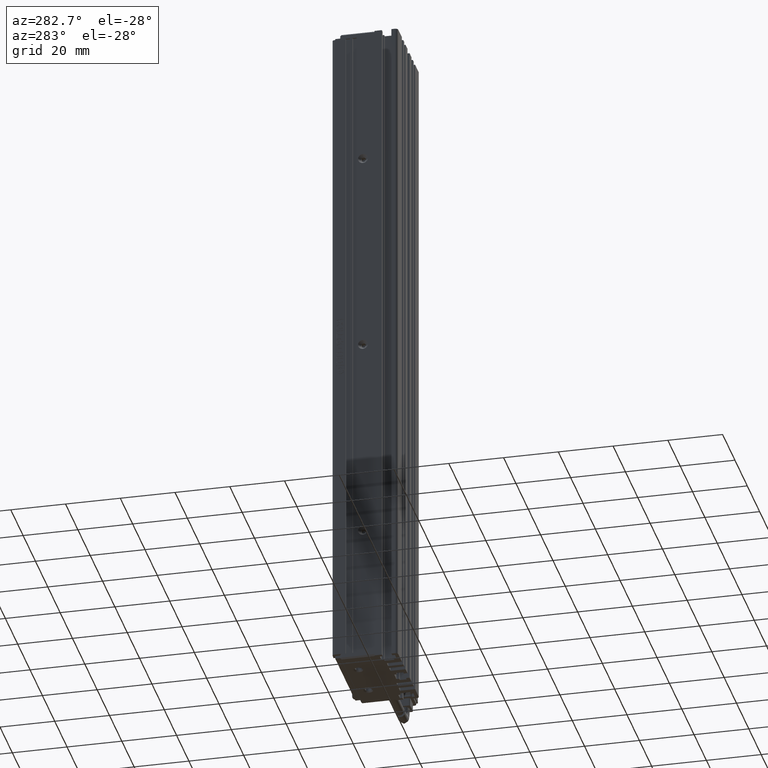
[diagram: clean part render]
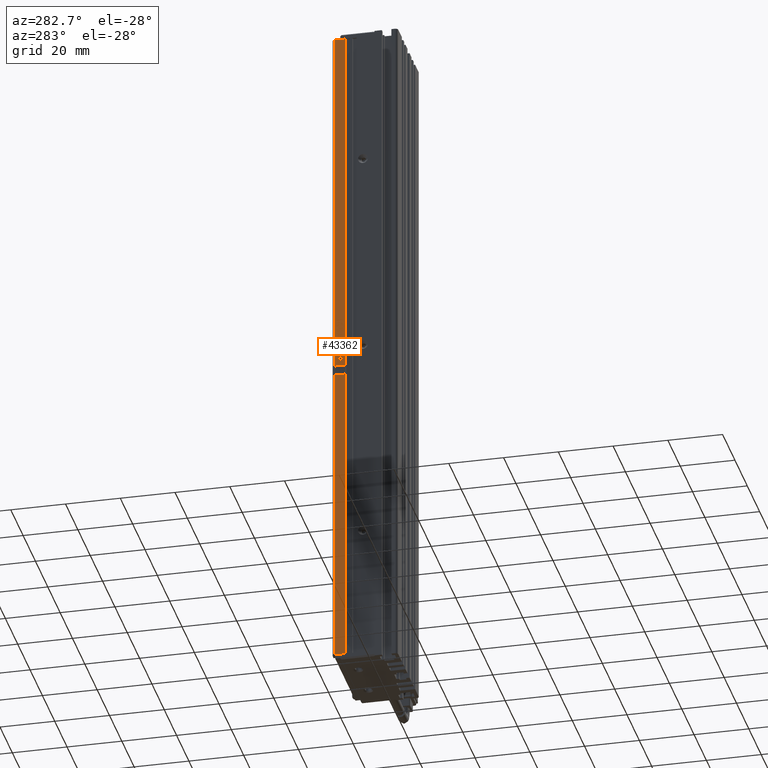
[diagram: same view with one face highlighted and labeled with its STEP entity id]
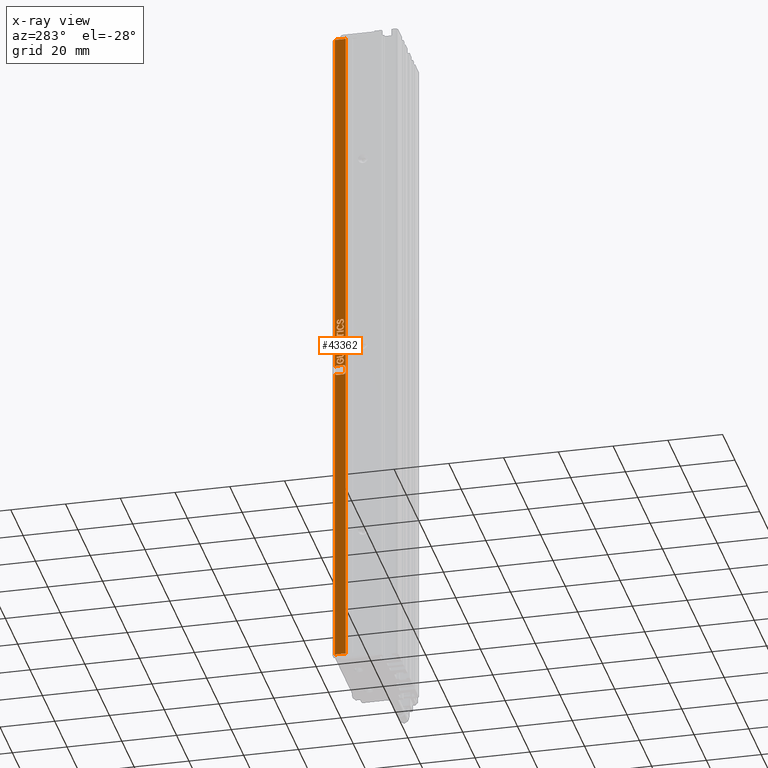
[diagram: x-ray of the same camera — body ghosted, the highlighted face saturated]
A machine part, auxiliary view. The second image highlights one B-rep face of the part: STEP entity #43362.
The next image is the same camera in x-ray: the body ghosted, the highlighted face saturated — about 0% of this face is hidden behind the body in this view.
In plain terms, the highlighted planar face has unit normal (-1, -0, 0).
Its self-contained STEP definition (entity closure, byte-faithful):
#133 = DIRECTION ( 'NONE',  ( -0.0000000000000000000, 1.000000000000000000, -0.0000000000000000000 ) ) ;
#205 = VERTEX_POINT ( 'NONE', #35157 ) ;
#301 = VECTOR ( 'NONE', #48933, 1000.000000000000000 ) ;
#399 = B_SPLINE_CURVE_WITH_KNOTS ( 'NONE', 3,
 ( #13571, #65816, #87419, #87736 ),
 .UNSPECIFIED., .F., .F.,
 ( 4, 4 ),
 ( 2.000000000000000000, 3.000000000000000000 ),
 .UNSPECIFIED. ) ;
#604 = CARTESIAN_POINT ( 'NONE',  ( 23.42537974683542500, 31.37776590944847800, -107.6851000540833800 ) ) ;
#615 = CARTESIAN_POINT ( 'NONE',  ( 23.42537974683542500, 30.69952767256366900, -104.8249729583558000 ) ) ;
#816 = ORIENTED_EDGE ( 'NONE', *, *, #63967, .F. ) ;
#934 = CARTESIAN_POINT ( 'NONE',  ( 23.42537974683542500, 32.80019019284490200, -113.8900081124931100 ) ) ;
#1048 = CARTESIAN_POINT ( 'NONE',  ( 23.42537974683542500, 31.40882999814507300, -104.4019064359113000 ) ) ;
#1067 = B_SPLINE_CURVE_WITH_KNOTS ( 'NONE', 3,
 ( #32467, #85077, #70038, #40638 ),
 .UNSPECIFIED., .F., .F.,
 ( 4, 4 ),
 ( 13.00000000000000000, 14.00000000000000000 ),
 .UNSPECIFIED. ) ;
#1158 = VECTOR ( 'NONE', #7660, 1000.000000000000000 ) ;
#1188 = VERTEX_POINT ( 'NONE', #50895 ) ;
#1363 = DIRECTION ( 'NONE',  ( -0.0000000000000000000, 1.000000000000000000, -0.0000000000000000000 ) ) ;
#1452 = ORIENTED_EDGE ( 'NONE', *, *, #48723, .F. ) ;
#1497 = CARTESIAN_POINT ( 'NONE',  ( 23.42537974683542500, 33.28092302140087400, -104.8900081124933300 ) ) ;
#1574 = EDGE_CURVE ( 'NONE', #9778, #46601, #36379, .T. ) ;
#2204 = CARTESIAN_POINT ( 'NONE',  ( 23.42537974683542500, 32.45534162605204600, -106.0832206598161200 ) ) ;
#2284 = VERTEX_POINT ( 'NONE', #2953 ) ;
#2303 = EDGE_CURVE ( 'NONE', #95960, #10164, #33623, .T. ) ;
#2379 = VERTEX_POINT ( 'NONE', #34272 ) ;
#2451 = VERTEX_POINT ( 'NONE', #87200 ) ;
#2779 = EDGE_CURVE ( 'NONE', #58000, #44211, #86510, .T. ) ;
#2809 = ORIENTED_EDGE ( 'NONE', *, *, #85011, .F. ) ;
#2904 = CARTESIAN_POINT ( 'NONE',  ( 23.42537974683542500, 33.24603930047064900, -117.2671038399135200 ) ) ;
#2953 = CARTESIAN_POINT ( 'NONE',  ( 23.42537974683542500, 30.69952767256366900, -107.0920767982693200 ) ) ;
#2996 = EDGE_CURVE ( 'NONE', #55788, #9778, #74684, .T. ) ;
#3010 = B_SPLINE_CURVE_WITH_KNOTS ( 'NONE', 3,
 ( #1497, #15131, #68031, #53778 ),
 .UNSPECIFIED., .F., .F.,
 ( 4, 4 ),
 ( 5.000000000000000000, 6.000000000000000000 ),
 .UNSPECIFIED. ) ;
#3016 = CARTESIAN_POINT ( 'NONE',  ( 23.42537974683542500, 30.69952767256366900, -114.9999999999999900 ) ) ;
#3165 = ORIENTED_EDGE ( 'NONE', *, *, #77799, .F. ) ;
#3182 = VERTEX_POINT ( 'NONE', #88012 ) ;
#3444 = VERTEX_POINT ( 'NONE', #40868 ) ;
#3587 = EDGE_CURVE ( 'NONE', #73644, #3940, #94366, .T. ) ;
#3675 = CARTESIAN_POINT ( 'NONE',  ( 23.42537974683542500, 33.90900598044650100, -123.2097405380182000 ) ) ;
#3940 = VERTEX_POINT ( 'NONE', #9437 ) ;
#3970 = LINE ( 'NONE', #39092, #30769 ) ;
#4280 = CARTESIAN_POINT ( 'NONE',  ( 23.42537974683542500, 33.24603930047064900, -117.2671038399135200 ) ) ;
#4296 = B_SPLINE_CURVE_WITH_KNOTS ( 'NONE', 3,
 ( #84041, #63155, #63480, #49132 ),
 .UNSPECIFIED., .F., .F.,
 ( 4, 4 ),
 ( 4.000000000000000000, 5.000000000000000000 ),
 .UNSPECIFIED. ) ;
#4302 = ORIENTED_EDGE ( 'NONE', *, *, #33828, .F. ) ;
#4515 = VERTEX_POINT ( 'NONE', #40997 ) ;
#4531 = DIRECTION ( 'NONE',  ( -0.0000000000000000000, -0.0000000000000000000, -1.000000000000000000 ) ) ;
#4578 = ORIENTED_EDGE ( 'NONE', *, *, #25819, .F. ) ;
#4658 = CARTESIAN_POINT ( 'NONE',  ( 23.42537974683542500, 33.99073232304837700, 8.999999999999994700 ) ) ;
#4723 = B_SPLINE_CURVE_WITH_KNOTS ( 'NONE', 3,
 ( #41046, #84824, #33517, #48615 ),
 .UNSPECIFIED., .F., .F.,
 ( 4, 4 ),
 ( 12.00000000000000000, 13.00000000000000000 ),
 .UNSPECIFIED. ) ;
#4832 = CARTESIAN_POINT ( 'NONE',  ( 23.42537974683542500, 31.02510906791250300, -104.5754461871281100 ) ) ;
#5032 = DIRECTION ( 'NONE',  ( -0.0000000000000000000, 1.000000000000000000, -0.0000000000000000000 ) ) ;
#5280 = EDGE_CURVE ( 'NONE', #53361, #56763, #33048, .T. ) ;
#5300 = CARTESIAN_POINT ( 'NONE',  ( 23.42537974683542500, 31.83906255628459500, -120.1959843158463300 ) ) ;
#5458 = VECTOR ( 'NONE', #85474, 1000.000000000000000 ) ;
#5476 = CARTESIAN_POINT ( 'NONE',  ( 23.42537974683542500, 32.92045790512180000, -105.1251352082206400 ) ) ;
#5583 = CARTESIAN_POINT ( 'NONE',  ( 23.42537974683542500, 33.90900598044650100, -123.2097405380182000 ) ) ;
#5891 = CARTESIAN_POINT ( 'NONE',  ( 23.42537974683542500, 32.80417883535436400, -108.1949702541913900 ) ) ;
#5923 = CARTESIAN_POINT ( 'NONE',  ( 23.42537974683542500, 30.69952767256366900, -120.7383044889129300 ) ) ;
#6176 = DIRECTION ( 'NONE',  ( -0.0000000000000000000, -0.0000000000000000000, 1.000000000000000000 ) ) ;
#6551 = FACE_BOUND ( 'NONE', #30474, .T. ) ;
#6564 = DIRECTION ( 'NONE',  ( -0.0000000000000000000, -1.000000000000000000, -0.0000000000000000000 ) ) ;
#6592 = ORIENTED_EDGE ( 'NONE', *, *, #33156, .F. ) ;
#6602 = CARTESIAN_POINT ( 'NONE',  ( 23.42537974683542500, 32.43208581209855600, -111.6589372633855000 ) ) ;
#6691 = CARTESIAN_POINT ( 'NONE',  ( 23.42537974683542500, 31.03673697488924100, -118.6737425635478500 ) ) ;
#7300 = CARTESIAN_POINT ( 'NONE',  ( 23.42537974683542500, 30.86034238176067700, -122.5300127964471500 ) ) ;
#7324 = EDGE_CURVE ( 'NONE', #95101, #83340, #34491, .T. ) ;
#7660 = DIRECTION ( 'NONE',  ( -0.0000000000000000000, -0.0000000000000000000, 1.000000000000000000 ) ) ;
#7760 = CARTESIAN_POINT ( 'NONE',  ( 23.42537974683542500, 31.60650441674971800, -105.8229448350457300 ) ) ;
#7895 = B_SPLINE_CURVE_WITH_KNOTS ( 'NONE', 3,
 ( #76086, #53978, #90138, #1048 ),
 .UNSPECIFIED., .F., .F.,
 ( 4, 4 ),
 ( 3.000000000000000000, 4.000000000000000000 ),
 .UNSPECIFIED. ) ;
#8004 = ORIENTED_EDGE ( 'NONE', *, *, #30761, .F. ) ;
#8191 = LINE ( 'NONE', #73401, #70120 ) ;
#8301 = CARTESIAN_POINT ( 'NONE',  ( 23.42537974683542500, 33.24603930047064900, -113.5138588426176700 ) ) ;
#8357 = CARTESIAN_POINT ( 'NONE',  ( 23.42537974683542500, 31.03673697488924100, -118.3193618171984300 ) ) ;
#8651 = CARTESIAN_POINT ( 'NONE',  ( 23.42537974683542500, 33.90900598044650100, -125.5786491371620500 ) ) ;
#8694 = ORIENTED_EDGE ( 'NONE', *, *, #77194, .F. ) ;
#8736 = DIRECTION ( 'NONE',  ( -0.0000000000000000000, -1.000000000000000000, -0.0000000000000000000 ) ) ;
#8752 = CARTESIAN_POINT ( 'NONE',  ( 23.42537974683542500, 33.23441139349390000, -114.2769064359113100 ) ) ;
#8948 = ORIENTED_EDGE ( 'NONE', *, *, #60796, .F. ) ;
#9114 = EDGE_CURVE ( 'NONE', #32287, #89635, #86235, .T. ) ;
#9238 = ORIENTED_EDGE ( 'NONE', *, *, #13130, .F. ) ;
#9380 = CARTESIAN_POINT ( 'NONE',  ( 23.42537974683542500, 32.89720209116831700, -110.1185776095187700 ) ) ;
#9411 = CARTESIAN_POINT ( 'NONE',  ( 23.42537974683542500, 32.92045790512180000, -106.8281503515413700 ) ) ;
#9437 = CARTESIAN_POINT ( 'NONE',  ( 23.42537974683542500, 31.79255092837762900, -104.8466062736614400 ) ) ;
#9489 = DIRECTION ( 'NONE',  ( 0.0000000000000000000, 0.0000000000000000000, 1.000000000000000000 ) ) ;
#9571 = CARTESIAN_POINT ( 'NONE',  ( 23.42537974683542500, 30.69952767256366900, -106.6654948620877100 ) ) ;
#9778 = VERTEX_POINT ( 'NONE', #81613 ) ;
#9842 = B_SPLINE_CURVE_WITH_KNOTS ( 'NONE', 3,
 ( #68135, #934, #8752, #90037 ),
 .UNSPECIFIED., .F., .F.,
 ( 4, 4 ),
 ( 3.000000000000000000, 4.000000000000000000 ),
 .UNSPECIFIED. ) ;
#10059 = ORIENTED_EDGE ( 'NONE', *, *, #14943, .F. ) ;
#10105 = ORIENTED_EDGE ( 'NONE', *, *, #94538, .F. ) ;
#10164 = VERTEX_POINT ( 'NONE', #29431 ) ;
#10925 = LINE ( 'NONE', #43754, #58870 ) ;
#11250 = CARTESIAN_POINT ( 'NONE',  ( 23.42537974683542500, 30.69952767256366900, -118.3301784748512200 ) ) ;
#11311 = VERTEX_POINT ( 'NONE', #5583 ) ;
#11749 = EDGE_CURVE ( 'NONE', #30981, #3182, #55202, .T. ) ;
#12047 = CARTESIAN_POINT ( 'NONE',  ( 23.42537974683542500, 30.69952767256366900, -114.9999999999999900 ) ) ;
#12280 = DIRECTION ( 'NONE',  ( -0.0000000000000000000, -1.000000000000000000, -0.0000000000000000000 ) ) ;
#12354 = EDGE_CURVE ( 'NONE', #36418, #2284, #41793, .T. ) ;
#12411 = B_SPLINE_CURVE_WITH_KNOTS ( 'NONE', 3,
 ( #20853, #20185, #37822, #90059 ),
 .UNSPECIFIED., .F., .F.,
 ( 4, 4 ),
 ( 4.000000000000000000, 5.000000000000000000 ),
 .UNSPECIFIED. ) ;
#12438 = VECTOR ( 'NONE', #25693, 1000.000000000000000 ) ;
#12467 = CARTESIAN_POINT ( 'NONE',  ( 23.42537974683542500, 32.17627185861018500, -105.8193618171984700 ) ) ;
#12603 = CARTESIAN_POINT ( 'NONE',  ( 23.42537974683542500, 33.24603930047064900, -119.3715521903732100 ) ) ;
#12732 = CARTESIAN_POINT ( 'NONE',  ( 23.42537974683542500, 33.28092302140087400, -107.1137777176852700 ) ) ;
#12844 = B_SPLINE_CURVE_WITH_KNOTS ( 'NONE', 3,
 ( #66388, #96402, #65765, #7300 ),
 .UNSPECIFIED., .F., .F.,
 ( 4, 4 ),
 ( 5.000000000000000000, 6.000000000000000000 ),
 .UNSPECIFIED. ) ;
#12999 = VECTOR ( 'NONE', #79588, 1000.000000000000000 ) ;
#13130 = EDGE_CURVE ( 'NONE', #64711, #14428, #78707, .T. ) ;
#13376 = VERTEX_POINT ( 'NONE', #61083 ) ;
#13571 = CARTESIAN_POINT ( 'NONE',  ( 23.42537974683542500, 31.99022534698228200, -121.4108977825854100 ) ) ;
#13717 = EDGE_CURVE ( 'NONE', #31597, #15818, #8191, .T. ) ;
#13883 = CARTESIAN_POINT ( 'NONE',  ( 23.42537974683542500, 32.00185325395902000, -121.9315846403461400 ) ) ;
#13938 = ORIENTED_EDGE ( 'NONE', *, *, #81349, .F. ) ;
#14019 = CARTESIAN_POINT ( 'NONE',  ( 23.42537974683542500, 30.69952767256366900, -120.7383044889129300 ) ) ;
#14102 = B_SPLINE_CURVE_WITH_KNOTS ( 'NONE', 3,
 ( #43081, #73100, #5891, #28368 ),
 .UNSPECIFIED., .F., .F.,
 ( 4, 4 ),
 ( 8.000000000000000000, 9.000000000000000000 ),
 .UNSPECIFIED. ) ;
#14428 = VERTEX_POINT ( 'NONE', #58891 ) ;
#14457 = LINE ( 'NONE', #23645, #67030 ) ;
#14943 = EDGE_CURVE ( 'NONE', #81633, #48456, #12411, .T. ) ;
#14949 = DIRECTION ( 'NONE',  ( -0.0000000000000000000, -0.0000000000000000000, 1.000000000000000000 ) ) ;
#14999 = CARTESIAN_POINT ( 'NONE',  ( 23.42537974683542500, 31.97859744000552200, -113.8393050297457600 ) ) ;
#15118 = EDGE_CURVE ( 'NONE', #89635, #57793, #17070, .T. ) ;
#15131 = CARTESIAN_POINT ( 'NONE',  ( 23.42537974683542500, 33.27311474665776100, -105.4540968090859700 ) ) ;
#15218 = CARTESIAN_POINT ( 'NONE',  ( 23.42537974683542500, 33.24603930047064900, -109.3484315846403700 ) ) ;
#15307 = EDGE_LOOP ( 'NONE', ( #28251, #83272, #82706, #74337 ) ) ;
#15496 = EDGE_CURVE ( 'NONE', #51816, #54875, #85677, .T. ) ;
#15818 = VERTEX_POINT ( 'NONE', #42745 ) ;
#15949 = ORIENTED_EDGE ( 'NONE', *, *, #12354, .F. ) ;
#16474 = DIRECTION ( 'NONE',  ( -0.0000000000000000000, -0.0000000000000000000, 1.000000000000000000 ) ) ;
#16535 = VECTOR ( 'NONE', #1363, 1000.000000000000000 ) ;
#16637 = LINE ( 'NONE', #57062, #93800 ) ;
#16643 = LINE ( 'NONE', #18784, #301 ) ;
#16776 = LINE ( 'NONE', #93897, #47217 ) ;
#17051 = LINE ( 'NONE', #85118, #12438 ) ;
#17067 = ORIENTED_EDGE ( 'NONE', *, *, #15496, .F. ) ;
#17070 = LINE ( 'NONE', #2904, #5458 ) ;
#17138 = EDGE_CURVE ( 'NONE', #81371, #95960, #43915, .T. ) ;
#17255 = VERTEX_POINT ( 'NONE', #7760 ) ;
#17417 = LINE ( 'NONE', #74098, #37318 ) ;
#17429 = CARTESIAN_POINT ( 'NONE',  ( 23.42537974683542500, 32.93208581209855600, -120.7708896700919200 ) ) ;
#17457 = CARTESIAN_POINT ( 'NONE',  ( 23.42537974683542500, 33.28092302140087400, -114.9999999999999900 ) ) ;
#17543 = EDGE_CURVE ( 'NONE', #90311, #31597, #16776, .T. ) ;
#17681 = VERTEX_POINT ( 'NONE', #26233 ) ;
#17898 = ORIENTED_EDGE ( 'NONE', *, *, #69248, .F. ) ;
#17959 = CARTESIAN_POINT ( 'NONE',  ( 23.42537974683542500, 31.80417883535438500, -119.3715521903732100 ) ) ;
#18135 = CARTESIAN_POINT ( 'NONE',  ( 23.42537974683542500, 30.86034238176067700, -122.5300127964471500 ) ) ;
#18226 = CARTESIAN_POINT ( 'NONE',  ( 23.42537974683542500, 32.93208581209855600, -120.7708896700919200 ) ) ;
#18628 = VERTEX_POINT ( 'NONE', #91942 ) ;
#18784 = CARTESIAN_POINT ( 'NONE',  ( 23.42537974683542500, 34.99073232304837700, -239.0000000000000000 ) ) ;
#18807 = EDGE_CURVE ( 'NONE', #36575, #57390, #91240, .T. ) ;
#18916 = CARTESIAN_POINT ( 'NONE',  ( 23.42537974683542500, 32.45534162605204600, -106.0832206598161200 ) ) ;
#19040 = CARTESIAN_POINT ( 'NONE',  ( 23.42537974683542500, 30.18058064682292100, -125.5786491371620500 ) ) ;
#19050 = CARTESIAN_POINT ( 'NONE',  ( 23.42537974683542500, 30.74603930047064500, -113.5138588426176700 ) ) ;
#19153 = VECTOR ( 'NONE', #4531, 1000.000000000000000 ) ;
#19156 = EDGE_CURVE ( 'NONE', #1188, #75937, #4296, .T. ) ;
#19402 = VERTEX_POINT ( 'NONE', #67611 ) ;
#19520 = CARTESIAN_POINT ( 'NONE',  ( 23.42537974683542500, 31.97859744000552200, -113.8393050297457600 ) ) ;
#19827 = VECTOR ( 'NONE', #16474, 1000.000000000000000 ) ;
#19979 = ORIENTED_EDGE ( 'NONE', *, *, #2996, .F. ) ;
#20167 = VERTEX_POINT ( 'NONE', #39066 ) ;
#20185 = CARTESIAN_POINT ( 'NONE',  ( 23.42537974683542500, 31.15683567689034200, -120.2756219578148800 ) ) ;
#20435 = CARTESIAN_POINT ( 'NONE',  ( 23.42537974683542500, 32.92045790512180000, -104.8791914548403100 ) ) ;
#20566 = FACE_OUTER_BOUND ( 'NONE', #25562, .T. ) ;
#20853 = CARTESIAN_POINT ( 'NONE',  ( 23.42537974683542500, 31.42045790512182900, -120.1959843158463300 ) ) ;
#20964 = CARTESIAN_POINT ( 'NONE',  ( 23.42537974683542500, 31.16846358386707300, -108.1949702541913900 ) ) ;
#21328 = ORIENTED_EDGE ( 'NONE', *, *, #63071, .F. ) ;
#21338 = DIRECTION ( 'NONE',  ( -0.0000000000000000000, -1.000000000000000000, -0.0000000000000000000 ) ) ;
#21511 = ORIENTED_EDGE ( 'NONE', *, *, #72301, .F. ) ;
#22046 = ORIENTED_EDGE ( 'NONE', *, *, #39557, .T. ) ;
#22048 = ORIENTED_EDGE ( 'NONE', *, *, #7324, .T. ) ;
#22208 = VERTEX_POINT ( 'NONE', #18135 ) ;
#22937 = DIRECTION ( 'NONE',  ( -0.0000000000000000000, -0.0000000000000000000, 1.000000000000000000 ) ) ;
#23030 = CARTESIAN_POINT ( 'NONE',  ( 23.42537974683542500, 33.90900598044650100, -126.0273727342293700 ) ) ;
#23149 = CARTESIAN_POINT ( 'NONE',  ( 23.42537974683542500, 32.54836488186600000, -119.7186992969173100 ) ) ;
#23515 = VERTEX_POINT ( 'NONE', #59182 ) ;
#23645 = CARTESIAN_POINT ( 'NONE',  ( 23.42537974683542500, 31.16464395163343000, -105.8229448350457300 ) ) ;
#24038 = VECTOR ( 'NONE', #95275, 1000.000000000000000 ) ;
#24220 = LINE ( 'NONE', #8301, #95507 ) ;
#24225 = ORIENTED_EDGE ( 'NONE', *, *, #77185, .F. ) ;
#24434 = CARTESIAN_POINT ( 'NONE',  ( 23.42537974683542500, 32.76530647191466300, -106.6654948620877100 ) ) ;
#24504 = DIRECTION ( 'NONE',  ( -0.0000000000000000000, -1.000000000000000000, -0.0000000000000000000 ) ) ;
#24503 = CARTESIAN_POINT ( 'NONE',  ( 23.42537974683542500, 29.99073232304837000, 10.99999999999999600 ) ) ;
#24571 = CARTESIAN_POINT ( 'NONE',  ( 23.42537974683542500, 31.87394627721481300, -111.6445375878854500 ) ) ;
#24773 = ORIENTED_EDGE ( 'NONE', *, *, #55929, .F. ) ;
#24781 = EDGE_CURVE ( 'NONE', #11311, #31310, #36564, .T. ) ;
#24791 = ORIENTED_EDGE ( 'NONE', *, *, #1574, .F. ) ;
#24895 = CARTESIAN_POINT ( 'NONE',  ( 23.42537974683542500, 31.60251577424026700, -111.9265819361817200 ) ) ;
#25083 = CARTESIAN_POINT ( 'NONE',  ( 23.42537974683542500, 32.45534162605204600, -106.5930908599242500 ) ) ;
#25331 = CARTESIAN_POINT ( 'NONE',  ( 23.42537974683542500, 31.67627185861019600, -118.8508653326121900 ) ) ;
#25440 = ORIENTED_EDGE ( 'NONE', *, *, #83049, .F. ) ;
#25480 = CARTESIAN_POINT ( 'NONE',  ( 23.42537974683542500, 30.86034238176067700, -126.2584380358828200 ) ) ;
#25508 = B_SPLINE_CURVE_WITH_KNOTS ( 'NONE', 3,
 ( #17429, #69719, #39662, #84085 ),
 .UNSPECIFIED., .F., .F.,
 ( 4, 4 ),
 ( 1.000000000000000000, 2.000000000000000000 ),
 .UNSPECIFIED. ) ;
#25562 = EDGE_LOOP ( 'NONE', ( #54362, #25664, #22046, #22048 ) ) ;
#25664 = ORIENTED_EDGE ( 'NONE', *, *, #90615, .T. ) ;
#25669 = CARTESIAN_POINT ( 'NONE',  ( 23.42537974683542500, 32.89720209116831700, -111.4094104921578000 ) ) ;
#25693 = DIRECTION ( 'NONE',  ( -0.0000000000000000000, -1.000000000000000000, -0.0000000000000000000 ) ) ;
#25819 = EDGE_CURVE ( 'NONE', #59277, #81371, #27886, .T. ) ;
#26162 = CARTESIAN_POINT ( 'NONE',  ( 23.42537974683542500, 30.69952767256366900, -118.3301784748512200 ) ) ;
#26233 = CARTESIAN_POINT ( 'NONE',  ( 23.42537974683542500, 33.24603930047064900, -111.4094104921578000 ) ) ;
#26624 = CARTESIAN_POINT ( 'NONE',  ( 23.42537974683542500, 30.18058064682292100, -126.0273727342293700 ) ) ;
#26629 = VERTEX_POINT ( 'NONE', #45129 ) ;
#26703 = AXIS2_PLACEMENT_3D ( 'NONE', #67232, #81321, #43471 ) ;
#26955 = CARTESIAN_POINT ( 'NONE',  ( 23.42537974683542500, 31.83906255628459500, -120.8902109248240500 ) ) ;
#27015 = CARTESIAN_POINT ( 'NONE',  ( 23.42537974683542500, 31.03274833237978900, -105.2479718766901600 ) ) ;
#27410 = CARTESIAN_POINT ( 'NONE',  ( 23.42537974683542500, 32.23441139349388600, -104.8249729583558000 ) ) ;
#27633 = CARTESIAN_POINT ( 'NONE',  ( 23.42537974683542500, 31.42045790512182900, -120.1959843158463300 ) ) ;
#27886 = B_SPLINE_CURVE_WITH_KNOTS ( 'NONE', 3,
 ( #53863, #53556, #39404, #91625 ),
 .UNSPECIFIED., .F., .F.,
 ( 4, 4 ),
 ( 8.000000000000000000, 9.000000000000000000 ),
 .UNSPECIFIED. ) ;
#28086 = CARTESIAN_POINT ( 'NONE',  ( 23.42537974683542500, 30.69952767256366900, -120.1959843158463300 ) ) ;
#28251 = ORIENTED_EDGE ( 'NONE', *, *, #54720, .F. ) ;
#28368 = CARTESIAN_POINT ( 'NONE',  ( 23.42537974683542500, 31.99022534698228200, -108.2310708491077100 ) ) ;
#28471 = CARTESIAN_POINT ( 'NONE',  ( 23.42537974683542500, 31.99022534698228200, -108.2310708491077100 ) ) ;
#28641 = DIRECTION ( 'NONE',  ( -0.0000000000000000000, -0.0000000000000000000, -1.000000000000000000 ) ) ;
#28876 = CARTESIAN_POINT ( 'NONE',  ( 23.42537974683542500, 32.89720209116831700, -110.1185776095187700 ) ) ;
#28971 = ORIENTED_EDGE ( 'NONE', *, *, #83468, .F. ) ;
#28974 = EDGE_CURVE ( 'NONE', #75937, #49742, #57962, .T. ) ;
#29134 = B_SPLINE_CURVE_WITH_KNOTS ( 'NONE', 3,
 ( #50304, #72084, #42738, #27410 ),
 .UNSPECIFIED., .F., .F.,
 ( 4, 4 ),
 ( 11.00000000000000000, 12.00000000000000000 ),
 .UNSPECIFIED. ) ;
#29320 = CARTESIAN_POINT ( 'NONE',  ( 23.42537974683542500, 31.03673697488924100, -106.9727555435370200 ) ) ;
#29327 = CARTESIAN_POINT ( 'NONE',  ( 23.42537974683542500, 33.28092302140087400, -120.2285018929152300 ) ) ;
#29431 = CARTESIAN_POINT ( 'NONE',  ( 23.42537974683542500, 33.28092302140087400, -104.8900081124933300 ) ) ;
#29440 = VERTEX_POINT ( 'NONE', #14019 ) ;
#29580 = ORIENTED_EDGE ( 'NONE', *, *, #54963, .F. ) ;
#29679 = CARTESIAN_POINT ( 'NONE',  ( 23.42537974683542500, 33.24603930047064900, -112.5050703082747200 ) ) ;
#29718 = CARTESIAN_POINT ( 'NONE',  ( 23.42537974683542500, 31.80417883535438500, -119.3715521903732100 ) ) ;
#29937 = CARTESIAN_POINT ( 'NONE',  ( 23.42537974683542500, 32.45534162605204600, -106.5930908599242500 ) ) ;
#30240 = CARTESIAN_POINT ( 'NONE',  ( 23.42537974683542500, 31.20716693703095500, -106.3834505137911200 ) ) ;
#30415 = CARTESIAN_POINT ( 'NONE',  ( 23.42537974683542500, 31.07544032805313700, -121.1613710113577200 ) ) ;
#30441 = ORIENTED_EDGE ( 'NONE', *, *, #34351, .F. ) ;
#30474 = EDGE_LOOP ( 'NONE', ( #62714, #70322, #61955, #21328, #35850, #87620, #49967, #28971, #15949, #31775 ) ) ;
#30538 = ORIENTED_EDGE ( 'NONE', *, *, #66120, .F. ) ;
#30673 = CARTESIAN_POINT ( 'NONE',  ( 23.42537974683542500, 32.18789976558694100, -120.8902109248240500 ) ) ;
#30706 = CARTESIAN_POINT ( 'NONE',  ( 23.42537974683542500, 33.24603930047064900, -113.5138588426176700 ) ) ;
#30728 = DIRECTION ( 'NONE',  ( -0.0000000000000000000, -0.0000000000000000000, 1.000000000000000000 ) ) ;
#30761 = EDGE_CURVE ( 'NONE', #14428, #55788, #24220, .T. ) ;
#30769 = VECTOR ( 'NONE', #91328, 1000.000000000000000 ) ;
#30862 = CARTESIAN_POINT ( 'NONE',  ( 23.42537974683542500, 33.24603930047064900, -117.7877906976743700 ) ) ;
#30981 = VERTEX_POINT ( 'NONE', #36648 ) ;
#31310 = VERTEX_POINT ( 'NONE', #32980 ) ;
#31438 = LINE ( 'NONE', #31549, #84014 ) ;
#31542 = EDGE_CURVE ( 'NONE', #205, #2379, #17417, .T. ) ;
#31549 = CARTESIAN_POINT ( 'NONE',  ( 23.42537974683542500, 31.67627185861019600, -117.7877906976743700 ) ) ;
#31597 = VERTEX_POINT ( 'NONE', #59728 ) ;
#31611 = ORIENTED_EDGE ( 'NONE', *, *, #32394, .F. ) ;
#31690 = B_SPLINE_CURVE_WITH_KNOTS ( 'NONE', 3,
 ( #39430, #9411, #24434, #25083 ),
 .UNSPECIFIED., .F., .F.,
 ( 4, 4 ),
 ( 1.000000000000000000, 2.000000000000000000 ),
 .UNSPECIFIED. ) ;
#31775 = ORIENTED_EDGE ( 'NONE', *, *, #39759, .F. ) ;
#32287 = VERTEX_POINT ( 'NONE', #88320 ) ;
#32394 = EDGE_CURVE ( 'NONE', #48456, #60716, #59240, .T. ) ;
#32467 = CARTESIAN_POINT ( 'NONE',  ( 23.42537974683542500, 31.16464395163343000, -105.8229448350457300 ) ) ;
#32547 = CARTESIAN_POINT ( 'NONE',  ( 23.42537974683542500, 30.74603930047064500, -110.6392644672795000 ) ) ;
#32832 = LINE ( 'NONE', #25669, #60912 ) ;
#32980 = CARTESIAN_POINT ( 'NONE',  ( 23.42537974683542500, 33.90900598044650100, -125.5786491371620500 ) ) ;
#32982 = B_SPLINE_CURVE_WITH_KNOTS ( 'NONE', 3,
 ( #23149, #75368, #29327, #51962 ),
 .UNSPECIFIED., .F., .F.,
 ( 4, 4 ),
 ( 13.00000000000000000, 14.00000000000000000 ),
 .UNSPECIFIED. ) ;
#33048 = LINE ( 'NONE', #5300, #59973 ) ;
#33119 = EDGE_CURVE ( 'NONE', #91298, #20167, #29134, .T. ) ;
#33156 = EDGE_CURVE ( 'NONE', #76760, #65095, #34731, .T. ) ;
#33427 = DIRECTION ( 'NONE',  ( -0.0000000000000000000, -0.0000000000000000000, -1.000000000000000000 ) ) ;
#33517 = CARTESIAN_POINT ( 'NONE',  ( 23.42537974683542500, 32.81580674233111200, -121.9027852893456200 ) ) ;
#33600 = CARTESIAN_POINT ( 'NONE',  ( 23.42537974683542500, 32.00185325395902000, -121.9315846403461400 ) ) ;
#33623 = B_SPLINE_CURVE_WITH_KNOTS ( 'NONE', 3,
 ( #43420, #73451, #73118, #50982 ),
 .UNSPECIFIED., .F., .F.,
 ( 4, 4 ),
 ( 6.000000000000000000, 7.000000000000000000 ),
 .UNSPECIFIED. ) ;
#33684 = EDGE_LOOP ( 'NONE', ( #69173, #21511, #87778, #38260, #85654, #83811, #39107, #44417, #42273, #4578, #93849, #4302, #95035, #8694 ) ) ;
#33780 = VECTOR ( 'NONE', #47725, 1000.000000000000000 ) ;
#33828 = EDGE_CURVE ( 'NONE', #20167, #57019, #36651, .T. ) ;
#33913 = DIRECTION ( 'NONE',  ( -0.0000000000000000000, 1.000000000000000000, -0.0000000000000000000 ) ) ;
#33972 = CARTESIAN_POINT ( 'NONE',  ( 23.42537974683542500, 33.90900598044650100, -122.7611460504888200 ) ) ;
#33993 = ORIENTED_EDGE ( 'NONE', *, *, #82482, .F. ) ;
#34272 = CARTESIAN_POINT ( 'NONE',  ( 23.42537974683542500, 31.59487650977296600, -106.1375067604109400 ) ) ;
#34332 = CARTESIAN_POINT ( 'NONE',  ( 23.42537974683542500, 31.79255092837762900, -104.8466062736614400 ) ) ;
#34351 = EDGE_CURVE ( 'NONE', #57390, #78223, #17051, .T. ) ;
#34362 = EDGE_CURVE ( 'NONE', #65957, #39860, #79802, .T. ) ;
#34491 = LINE ( 'NONE', #46034, #91690 ) ;
#34531 = FACE_BOUND ( 'NONE', #85113, .T. ) ;
#34602 = ORIENTED_EDGE ( 'NONE', *, *, #58610, .F. ) ;
#34731 = B_SPLINE_CURVE_WITH_KNOTS ( 'NONE', 3,
 ( #12047, #49979, #64307, #19520 ),
 .UNSPECIFIED., .F., .F.,
 ( 4, 4 ),
 ( 0.0000000000000000000, 1.000000000000000000 ),
 .UNSPECIFIED. ) ;
#34914 = DIRECTION ( 'NONE',  ( -0.0000000000000000000, 1.000000000000000000, -0.0000000000000000000 ) ) ;
#35091 = VERTEX_POINT ( 'NONE', #15218 ) ;
#35143 = VERTEX_POINT ( 'NONE', #9380 ) ;
#35157 = CARTESIAN_POINT ( 'NONE',  ( 23.42537974683542500, 31.11813232372646400, -106.1375067604109400 ) ) ;
#35451 = DIRECTION ( 'NONE',  ( -0.0000000000000000000, -0.0000000000000000000, 1.000000000000000000 ) ) ;
#35508 = CARTESIAN_POINT ( 'NONE',  ( 23.42537974683542500, 33.90900598044650100, -125.5786491371620500 ) ) ;
#35850 = ORIENTED_EDGE ( 'NONE', *, *, #59597, .F. ) ;
#35992 = CARTESIAN_POINT ( 'NONE',  ( 23.42537974683542500, 30.69952767256366900, -107.0920767982693200 ) ) ;
#36031 = B_SPLINE_CURVE_WITH_KNOTS ( 'NONE', 3,
 ( #93936, #27015, #70755, #64546 ),
 .UNSPECIFIED., .F., .F.,
 ( 4, 4 ),
 ( 1.000000000000000000, 2.000000000000000000 ),
 .UNSPECIFIED. ) ;
#36039 = EDGE_CURVE ( 'NONE', #2379, #83653, #79142, .T. ) ;
#36173 = EDGE_CURVE ( 'NONE', #4515, #39478, #4723, .T. ) ;
#36305 = EDGE_CURVE ( 'NONE', #76933, #83340, #16643, .T. ) ;
#36379 = LINE ( 'NONE', #81290, #50400 ) ;
#36418 = VERTEX_POINT ( 'NONE', #71715 ) ;
#36433 = EDGE_CURVE ( 'NONE', #39478, #29440, #66664, .T. ) ;
#36564 = LINE ( 'NONE', #35508, #93807 ) ;
#36575 = VERTEX_POINT ( 'NONE', #53129 ) ;
#36636 = CARTESIAN_POINT ( 'NONE',  ( 23.42537974683542500, 29.99073232304837000, 8.999999999999994700 ) ) ;
#36648 = CARTESIAN_POINT ( 'NONE',  ( 23.42537974683542500, 30.74603930047064500, -110.6392644672795000 ) ) ;
#36651 = B_SPLINE_CURVE_WITH_KNOTS ( 'NONE', 3,
 ( #70510, #85553, #85867, #48370 ),
 .UNSPECIFIED., .F., .F.,
 ( 4, 4 ),
 ( 10.00000000000000000, 11.00000000000000000 ),
 .UNSPECIFIED. ) ;
#36866 = CARTESIAN_POINT ( 'NONE',  ( 23.42537974683542500, 31.96696953302877700, -107.6995673336938500 ) ) ;
#37052 = EDGE_CURVE ( 'NONE', #78657, #2451, #57348, .T. ) ;
#37317 = CARTESIAN_POINT ( 'NONE',  ( 23.42537974683542500, 31.67627185861019600, -118.8508653326121900 ) ) ;
#37318 = VECTOR ( 'NONE', #67176, 1000.000000000000000 ) ;
#37807 = VECTOR ( 'NONE', #22937, 1000.000000000000000 ) ;
#37810 = CARTESIAN_POINT ( 'NONE',  ( 23.42537974683542500, 31.44371371907531200, -103.8703353163873400 ) ) ;
#37822 = CARTESIAN_POINT ( 'NONE',  ( 23.42537974683542500, 31.02892870014616000, -120.4527447268793300 ) ) ;
#38260 = ORIENTED_EDGE ( 'NONE', *, *, #88225, .F. ) ;
#38981 = CARTESIAN_POINT ( 'NONE',  ( 23.42537974683542500, 33.24603930047064900, -117.7877906976743700 ) ) ;
#38988 = CARTESIAN_POINT ( 'NONE',  ( 23.42537974683542500, 32.43208581209855600, -111.6589372633855000 ) ) ;
#39066 = CARTESIAN_POINT ( 'NONE',  ( 23.42537974683542500, 32.23441139349388600, -104.8249729583558000 ) ) ;
#39092 = CARTESIAN_POINT ( 'NONE',  ( 23.42537974683542500, 31.61813232372644900, -112.5050703082747200 ) ) ;
#39107 = ORIENTED_EDGE ( 'NONE', *, *, #80223, .F. ) ;
#39404 = CARTESIAN_POINT ( 'NONE',  ( 23.42537974683542500, 32.77311474665777500, -104.5140616549485900 ) ) ;
#39430 = CARTESIAN_POINT ( 'NONE',  ( 23.42537974683542500, 32.92045790512180000, -107.0812601406166900 ) ) ;
#39478 = VERTEX_POINT ( 'NONE', #33600 ) ;
#39557 = EDGE_CURVE ( 'NONE', #94112, #95101, #95704, .T. ) ;
#39662 = CARTESIAN_POINT ( 'NONE',  ( 23.42537974683542500, 32.80417883535436400, -120.3407247160627200 ) ) ;
#39759 = EDGE_CURVE ( 'NONE', #46543, #36418, #14102, .T. ) ;
#39793 = VERTEX_POINT ( 'NONE', #18226 ) ;
#39846 = B_SPLINE_CURVE_WITH_KNOTS ( 'NONE', 3,
 ( #8651, #23030, #82424, #68038 ),
 .UNSPECIFIED., .F., .F.,
 ( 4, 4 ),
 ( 1.000000000000000000, 2.000000000000000000 ),
 .UNSPECIFIED. ) ;
#39860 = VERTEX_POINT ( 'NONE', #66945 ) ;
#39868 = CARTESIAN_POINT ( 'NONE',  ( 23.42537974683542500, 33.67800862534609500, -122.5300127964471500 ) ) ;
#39895 = VERTEX_POINT ( 'NONE', #90435 ) ;
#40048 = DIRECTION ( 'NONE',  ( -0.0000000000000000000, -1.000000000000000000, -0.0000000000000000000 ) ) ;
#40489 = B_SPLINE_CURVE_WITH_KNOTS ( 'NONE', 3,
 ( #88972, #51189, #82414, #67380 ),
 .UNSPECIFIED., .F., .F.,
 ( 4, 4 ),
 ( 2.000000000000000000, 3.000000000000000000 ),
 .UNSPECIFIED. ) ;
#40638 = CARTESIAN_POINT ( 'NONE',  ( 23.42537974683542500, 30.69952767256366900, -104.8249729583558000 ) ) ;
#40691 = EDGE_CURVE ( 'NONE', #57019, #59277, #89201, .T. ) ;
#40782 = VECTOR ( 'NONE', #5032, 1000.000000000000000 ) ;
#40868 = CARTESIAN_POINT ( 'NONE',  ( 23.42537974683542500, 31.61813232372644900, -112.5050703082747200 ) ) ;
#40997 = CARTESIAN_POINT ( 'NONE',  ( 23.42537974683542500, 33.28092302140087400, -120.7708896700919200 ) ) ;
#41046 = CARTESIAN_POINT ( 'NONE',  ( 23.42537974683542500, 33.28092302140087400, -120.7708896700919200 ) ) ;
#41049 = CARTESIAN_POINT ( 'NONE',  ( 23.42537974683542500, 31.99022534698228200, -121.4108977825854100 ) ) ;
#41793 = B_SPLINE_CURVE_WITH_KNOTS ( 'NONE', 3,
 ( #28471, #20964, #73217, #35992 ),
 .UNSPECIFIED., .F., .F.,
 ( 4, 4 ),
 ( 7.000000000000000000, 8.000000000000000000 ),
 .UNSPECIFIED. ) ;
#42273 = ORIENTED_EDGE ( 'NONE', *, *, #17138, .F. ) ;
#42664 = ORIENTED_EDGE ( 'NONE', *, *, #86505, .F. ) ;
#42738 = CARTESIAN_POINT ( 'NONE',  ( 23.42537974683542500, 32.10251577424024600, -104.1886830719308500 ) ) ;
#42745 = CARTESIAN_POINT ( 'NONE',  ( 23.42537974683542500, 30.74603930047064500, -108.5348161168199300 ) ) ;
#42893 = B_SPLINE_CURVE_WITH_KNOTS ( 'NONE', 3,
 ( #63535, #79514, #26624, #19040 ),
 .UNSPECIFIED., .F., .F.,
 ( 4, 4 ),
 ( 7.000000000000000000, 8.000000000000000000 ),
 .UNSPECIFIED. ) ;
#43081 = CARTESIAN_POINT ( 'NONE',  ( 23.42537974683542500, 33.28092302140087400, -107.1137777176852700 ) ) ;
#43115 = CARTESIAN_POINT ( 'NONE',  ( 23.42537974683542500, 31.25766720744738700, -119.7078150351542100 ) ) ;
#43362 = ADVANCED_FACE ( 'NONE', ( #95316, #6551, #94116, #54465, #60327, #83615, #43896, #34531, #91735, #20566 ), #89561, .T. ) ;
#43420 = CARTESIAN_POINT ( 'NONE',  ( 23.42537974683542500, 32.50185325395902000, -103.9354380746349000 ) ) ;
#43471 = DIRECTION ( 'NONE',  ( 7.380418287155808400E-032, -1.000000000000000000, 0.0000000000000000000 ) ) ;
#43570 = VERTEX_POINT ( 'NONE', #76244 ) ;
#43647 = CARTESIAN_POINT ( 'NONE',  ( 23.42537974683542500, 31.25766720744738700, -119.7078150351542100 ) ) ;
#43754 = CARTESIAN_POINT ( 'NONE',  ( 23.42537974683542500, 31.83906255628459500, -120.8902109248240500 ) ) ;
#43896 = FACE_BOUND ( 'NONE', #95021, .T. ) ;
#43915 = LINE ( 'NONE', #73430, #24038 ) ;
#44211 = VERTEX_POINT ( 'NONE', #18916 ) ;
#44417 = ORIENTED_EDGE ( 'NONE', *, *, #2303, .F. ) ;
#44725 = EDGE_LOOP ( 'NONE', ( #1452, #63118, #3165, #44727, #17898, #46237, #55370, #68853 ) ) ;
#44727 = ORIENTED_EDGE ( 'NONE', *, *, #24781, .F. ) ;
#44771 = LINE ( 'NONE', #30862, #54231 ) ;
#44812 = CARTESIAN_POINT ( 'NONE',  ( 23.42537974683542500, 32.89720209116831700, -109.3484315846403700 ) ) ;
#45008 = CARTESIAN_POINT ( 'NONE',  ( 23.42537974683542500, 30.94770236158476400, -103.8632368848025300 ) ) ;
#45104 = VECTOR ( 'NONE', #33427, 1000.000000000000000 ) ;
#45129 = CARTESIAN_POINT ( 'NONE',  ( 23.42537974683542500, 32.54836488186600000, -120.2610194699837900 ) ) ;
#45662 = ORIENTED_EDGE ( 'NONE', *, *, #34362, .F. ) ;
#46034 = CARTESIAN_POINT ( 'NONE',  ( 23.42537974683542500, 33.99073232304837700, 10.99999999999999600 ) ) ;
#46237 = ORIENTED_EDGE ( 'NONE', *, *, #88927, .F. ) ;
#46543 = VERTEX_POINT ( 'NONE', #70348 ) ;
#46601 = VERTEX_POINT ( 'NONE', #49177 ) ;
#46746 = B_SPLINE_CURVE_WITH_KNOTS ( 'NONE', 3,
 ( #17959, #63085, #63405, #26162 ),
 .UNSPECIFIED., .F., .F.,
 ( 4, 4 ),
 ( 9.000000000000000000, 10.00000000000000000 ),
 .UNSPECIFIED. ) ;
#46751 = EDGE_CURVE ( 'NONE', #56763, #81633, #69451, .T. ) ;
#46784 = CARTESIAN_POINT ( 'NONE',  ( 23.42537974683542500, 32.43208581209855600, -111.6589372633855000 ) ) ;
#47217 = VECTOR ( 'NONE', #12280, 1000.000000000000000 ) ;
#47649 = DIRECTION ( 'NONE',  ( -0.0000000000000000000, -1.000000000000000000, -0.0000000000000000000 ) ) ;
#47725 = DIRECTION ( 'NONE',  ( 0.0000000000000000000, 1.000000000000000000, 0.0000000000000000000 ) ) ;
#48253 = EDGE_CURVE ( 'NONE', #19402, #3444, #3970, .T. ) ;
#48370 = CARTESIAN_POINT ( 'NONE',  ( 23.42537974683542500, 32.59487650977297300, -105.2371552190372600 ) ) ;
#48374 = EDGE_CURVE ( 'NONE', #89063, #17255, #36031, .T. ) ;
#48456 = VERTEX_POINT ( 'NONE', #73363 ) ;
#48615 = CARTESIAN_POINT ( 'NONE',  ( 23.42537974683542500, 32.00185325395902000, -121.9315846403461400 ) ) ;
#48723 = EDGE_CURVE ( 'NONE', #83106, #78657, #42893, .T. ) ;
#48933 = DIRECTION ( 'NONE',  ( 0.0000000000000000000, 1.000000000000000000, 0.0000000000000000000 ) ) ;
#49061 = EDGE_CURVE ( 'NONE', #3444, #64711, #87318, .T. ) ;
#49132 = CARTESIAN_POINT ( 'NONE',  ( 23.42537974683542500, 31.03673697488924100, -118.3193618171984300 ) ) ;
#49177 = CARTESIAN_POINT ( 'NONE',  ( 23.42537974683542500, 30.74603930047064500, -113.0040562466198000 ) ) ;
#49265 = VECTOR ( 'NONE', #72315, 1000.000000000000000 ) ;
#49311 = LINE ( 'NONE', #94584, #12999 ) ;
#49545 = CARTESIAN_POINT ( 'NONE',  ( 23.42537974683542500, 31.97859744000552200, -116.1606949702541100 ) ) ;
#49735 = CARTESIAN_POINT ( 'NONE',  ( 23.42537974683542500, 31.90882999814507300, -105.5121011357491600 ) ) ;
#49742 = VERTEX_POINT ( 'NONE', #25331 ) ;
#49801 = CARTESIAN_POINT ( 'NONE',  ( 23.42537974683542500, 33.22925104074796800, -122.5300127964471500 ) ) ;
#49967 = ORIENTED_EDGE ( 'NONE', *, *, #31542, .F. ) ;
#49979 = CARTESIAN_POINT ( 'NONE',  ( 23.42537974683542500, 30.74603930047064500, -114.2623715521904300 ) ) ;
#50190 = LINE ( 'NONE', #64639, #94533 ) ;
#50304 = CARTESIAN_POINT ( 'NONE',  ( 23.42537974683542500, 31.44371371907531200, -103.8703353163873400 ) ) ;
#50369 = VECTOR ( 'NONE', #24504, 1000.000000000000000 ) ;
#50400 = VECTOR ( 'NONE', #14949, 1000.000000000000000 ) ;
#50628 = ORIENTED_EDGE ( 'NONE', *, *, #48253, .F. ) ;
#50751 = EDGE_CURVE ( 'NONE', #2451, #22208, #12844, .T. ) ;
#50856 = ORIENTED_EDGE ( 'NONE', *, *, #86071, .F. ) ;
#50895 = CARTESIAN_POINT ( 'NONE',  ( 23.42537974683542500, 31.67627185861019600, -117.7877906976743700 ) ) ;
#50982 = CARTESIAN_POINT ( 'NONE',  ( 23.42537974683542500, 33.28092302140087400, -104.8900081124933300 ) ) ;
#51002 = ORIENTED_EDGE ( 'NONE', *, *, #77021, .F. ) ;
#51189 = CARTESIAN_POINT ( 'NONE',  ( 23.42537974683542500, 32.58706823502985400, -107.6924012979989000 ) ) ;
#51217 = CARTESIAN_POINT ( 'NONE',  ( 23.42537974683542500, 30.69952767256366900, -120.7383044889129300 ) ) ;
#51323 = CARTESIAN_POINT ( 'NONE',  ( 23.42537974683542500, 33.24603930047064900, -108.5348161168199300 ) ) ;
#51329 = CARTESIAN_POINT ( 'NONE',  ( 23.42537974683542500, 30.69952767256366900, -114.9999999999999900 ) ) ;
#51816 = VERTEX_POINT ( 'NONE', #85179 ) ;
#51962 = CARTESIAN_POINT ( 'NONE',  ( 23.42537974683542500, 33.28092302140087400, -120.7708896700919200 ) ) ;
#52162 = CARTESIAN_POINT ( 'NONE',  ( 23.42537974683542500, 31.16464395163343000, -121.9027852893456200 ) ) ;
#52581 = CARTESIAN_POINT ( 'NONE',  ( 23.42537974683542500, 32.92045790512180000, -107.0812601406166900 ) ) ;
#52616 = LINE ( 'NONE', #90867, #1158 ) ;
#53042 = EDGE_CURVE ( 'NONE', #57793, #80306, #44771, .T. ) ;
#53129 = CARTESIAN_POINT ( 'NONE',  ( 23.42537974683542500, 33.24603930047064900, -118.8508653326121900 ) ) ;
#53183 = LINE ( 'NONE', #85806, #19153 ) ;
#53361 = VERTEX_POINT ( 'NONE', #26955 ) ;
#53556 = CARTESIAN_POINT ( 'NONE',  ( 23.42537974683542500, 32.91264963037870200, -104.6622498647918900 ) ) ;
#53611 = DIRECTION ( 'NONE',  ( -0.0000000000000000000, -0.0000000000000000000, -1.000000000000000000 ) ) ;
#53778 = CARTESIAN_POINT ( 'NONE',  ( 23.42537974683542500, 32.59487650977297300, -105.7686587344510100 ) ) ;
#53863 = CARTESIAN_POINT ( 'NONE',  ( 23.42537974683542500, 32.92045790512180000, -104.8791914548403100 ) ) ;
#53961 = CARTESIAN_POINT ( 'NONE',  ( 23.42537974683542500, 31.61813232372644900, -113.0040562466198000 ) ) ;
#53978 = CARTESIAN_POINT ( 'NONE',  ( 23.42537974683542500, 31.73823102572753600, -104.5501622498645700 ) ) ;
#54231 = VECTOR ( 'NONE', #90635, 1000.000000000000000 ) ;
#54362 = ORIENTED_EDGE ( 'NONE', *, *, #36305, .F. ) ;
#54465 = FACE_BOUND ( 'NONE', #44725, .T. ) ;
#54587 = ORIENTED_EDGE ( 'NONE', *, *, #53042, .F. ) ;
#54685 = CARTESIAN_POINT ( 'NONE',  ( 23.42537974683542500, 31.61813232372644900, -112.5050703082747200 ) ) ;
#54720 = EDGE_CURVE ( 'NONE', #15818, #82118, #16637, .T. ) ;
#54869 = CARTESIAN_POINT ( 'NONE',  ( 23.42537974683542500, 31.40882999814507300, -104.4019064359113000 ) ) ;
#54875 = VERTEX_POINT ( 'NONE', #96438 ) ;
#54963 = EDGE_CURVE ( 'NONE', #43570, #35091, #65604, .T. ) ;
#55129 = VERTEX_POINT ( 'NONE', #43647 ) ;
#55202 = LINE ( 'NONE', #57078, #76193 ) ;
#55370 = ORIENTED_EDGE ( 'NONE', *, *, #50751, .F. ) ;
#55788 = VERTEX_POINT ( 'NONE', #30706 ) ;
#55929 = EDGE_CURVE ( 'NONE', #39860, #76760, #74844, .T. ) ;
#56676 = EDGE_CURVE ( 'NONE', #60716, #39793, #399, .T. ) ;
#56744 = CARTESIAN_POINT ( 'NONE',  ( 23.42537974683542500, 33.24985893270429200, -115.7376284478096000 ) ) ;
#56763 = VERTEX_POINT ( 'NONE', #82423 ) ;
#56892 = LINE ( 'NONE', #70668, #45104 ) ;
#57019 = VERTEX_POINT ( 'NONE', #94179 ) ;
#57062 = CARTESIAN_POINT ( 'NONE',  ( 23.42537974683542500, 33.24603930047064900, -108.5348161168199300 ) ) ;
#57078 = CARTESIAN_POINT ( 'NONE',  ( 23.42537974683542500, 30.74603930047064500, -110.1185776095187700 ) ) ;
#57111 = EDGE_LOOP ( 'NONE', ( #71320, #50628, #33993, #24791, #19979, #8004, #9238 ) ) ;
#57348 = LINE ( 'NONE', #73557, #81818 ) ;
#57390 = VERTEX_POINT ( 'NONE', #84182 ) ;
#57420 = CARTESIAN_POINT ( 'NONE',  ( 23.42537974683542500, 32.81181809982163600, -105.2444564629529400 ) ) ;
#57593 = ORIENTED_EDGE ( 'NONE', *, *, #36433, .F. ) ;
#57793 = VERTEX_POINT ( 'NONE', #4280 ) ;
#57962 = B_SPLINE_CURVE_WITH_KNOTS ( 'NONE', 3,
 ( #80795, #6691, #59570, #37317 ),
 .UNSPECIFIED., .F., .F.,
 ( 4, 4 ),
 ( 3.000000000000000000, 4.000000000000000000 ),
 .UNSPECIFIED. ) ;
#57991 = LINE ( 'NONE', #32547, #77796 ) ;
#58000 = VERTEX_POINT ( 'NONE', #29937 ) ;
#58307 = VERTEX_POINT ( 'NONE', #85117 ) ;
#58610 = EDGE_CURVE ( 'NONE', #18628, #87157, #52616, .T. ) ;
#58870 = VECTOR ( 'NONE', #6564, 1000.000000000000000 ) ;
#58891 = CARTESIAN_POINT ( 'NONE',  ( 23.42537974683542500, 33.24603930047064900, -112.5050703082747200 ) ) ;
#59138 = EDGE_LOOP ( 'NONE', ( #24225, #42664, #50856, #84061, #31611, #10059, #77030, #76889, #62677, #17067, #8948, #816, #57593, #95028 ) ) ;
#59181 = CARTESIAN_POINT ( 'NONE',  ( 23.42537974683542500, 33.24603930047064900, -111.9338155759872000 ) ) ;
#59182 = CARTESIAN_POINT ( 'NONE',  ( 23.42537974683542500, 31.96696953302877700, -107.6995673336938500 ) ) ;
#59240 = B_SPLINE_CURVE_WITH_KNOTS ( 'NONE', 3,
 ( #75210, #30415, #82702, #60552 ),
 .UNSPECIFIED., .F., .F.,
 ( 4, 4 ),
 ( 3.000000000000000000, 4.000000000000000000 ),
 .UNSPECIFIED. ) ;
#59277 = VERTEX_POINT ( 'NONE', #70220 ) ;
#59570 = CARTESIAN_POINT ( 'NONE',  ( 23.42537974683542500, 31.24985893270428900, -118.8508653326121900 ) ) ;
#59572 = ORIENTED_EDGE ( 'NONE', *, *, #89781, .F. ) ;
#59597 = EDGE_CURVE ( 'NONE', #83653, #23515, #61141, .T. ) ;
#59728 = CARTESIAN_POINT ( 'NONE',  ( 23.42537974683542500, 30.74603930047064500, -109.0446863169279400 ) ) ;
#59928 = ORIENTED_EDGE ( 'NONE', *, *, #15118, .F. ) ;
#59973 = VECTOR ( 'NONE', #86595, 1000.000000000000000 ) ;
#60309 = EDGE_CURVE ( 'NONE', #54875, #53361, #10925, .T. ) ;
#60327 = FACE_BOUND ( 'NONE', #60413, .T. ) ;
#60358 = LINE ( 'NONE', #28876, #88361 ) ;
#60413 = EDGE_LOOP ( 'NONE', ( #29580, #2809, #30538, #79991, #51002, #34602, #25440, #59572 ) ) ;
#60511 = B_SPLINE_CURVE_WITH_KNOTS ( 'NONE', 3,
 ( #54869, #76653, #4832, #63933 ),
 .UNSPECIFIED., .F., .F.,
 ( 4, 4 ),
 ( 2.000000000000000000, 3.000000000000000000 ),
 .UNSPECIFIED. ) ;
#60552 = CARTESIAN_POINT ( 'NONE',  ( 23.42537974683542500, 31.99022534698228200, -121.4108977825854100 ) ) ;
#60567 = EDGE_CURVE ( 'NONE', #79642, #58000, #31690, .T. ) ;
#60716 = VERTEX_POINT ( 'NONE', #41049 ) ;
#60796 = EDGE_CURVE ( 'NONE', #55129, #51816, #49311, .T. ) ;
#60912 = VECTOR ( 'NONE', #62269, 1000.000000000000000 ) ;
#61083 = CARTESIAN_POINT ( 'NONE',  ( 23.42537974683542500, 33.22925104074796800, -122.5300127964471500 ) ) ;
#61141 = B_SPLINE_CURVE_WITH_KNOTS ( 'NONE', 3,
 ( #29320, #66865, #604, #36866 ),
 .UNSPECIFIED., .F., .F.,
 ( 4, 4 ),
 ( 3.000000000000000000, 4.000000000000000000 ),
 .UNSPECIFIED. ) ;
#61955 = ORIENTED_EDGE ( 'NONE', *, *, #60567, .F. ) ;
#62269 = DIRECTION ( 'NONE',  ( -0.0000000000000000000, -1.000000000000000000, -0.0000000000000000000 ) ) ;
#62677 = ORIENTED_EDGE ( 'NONE', *, *, #60309, .F. ) ;
#62714 = ORIENTED_EDGE ( 'NONE', *, *, #75373, .F. ) ;
#62733 = EDGE_CURVE ( 'NONE', #65095, #65957, #9842, .T. ) ;
#63044 = CARTESIAN_POINT ( 'NONE',  ( 23.42537974683542500, 34.99073232304837700, 8.999999999999994700 ) ) ;
#63071 = EDGE_CURVE ( 'NONE', #23515, #79642, #40489, .T. ) ;
#63085 = CARTESIAN_POINT ( 'NONE',  ( 23.42537974683542500, 31.04437623935654100, -119.3932531097891600 ) ) ;
#63118 = ORIENTED_EDGE ( 'NONE', *, *, #80940, .F. ) ;
#63155 = CARTESIAN_POINT ( 'NONE',  ( 23.42537974683542500, 31.23441139349389300, -117.7733910221741000 ) ) ;
#63405 = CARTESIAN_POINT ( 'NONE',  ( 23.42537974683542500, 30.67627185861019600, -119.0461060032448300 ) ) ;
#63480 = CARTESIAN_POINT ( 'NONE',  ( 23.42537974683542500, 31.02112042540304400, -117.9505137912383400 ) ) ;
#63535 = CARTESIAN_POINT ( 'NONE',  ( 23.42537974683542500, 30.86034238176067700, -126.2584380358828200 ) ) ;
#63933 = CARTESIAN_POINT ( 'NONE',  ( 23.42537974683542500, 31.02510906791250300, -104.9008923742562600 ) ) ;
#63967 = EDGE_CURVE ( 'NONE', #29440, #55129, #67301, .T. ) ;
#64025 = CARTESIAN_POINT ( 'NONE',  ( 23.42537974683542500, 32.45534162605204600, -106.0832206598161200 ) ) ;
#64162 = CARTESIAN_POINT ( 'NONE',  ( 23.42537974683542500, 30.66082431939981500, -117.5854515954569200 ) ) ;
#64267 = LINE ( 'NONE', #25480, #50369 ) ;
#64307 = CARTESIAN_POINT ( 'NONE',  ( 23.42537974683542500, 31.17228321610073000, -113.8756084369929100 ) ) ;
#64546 = CARTESIAN_POINT ( 'NONE',  ( 23.42537974683542500, 31.60650441674971800, -105.8229448350457300 ) ) ;
#64639 = CARTESIAN_POINT ( 'NONE',  ( 23.42537974683542500, 33.24603930047064900, -118.8508653326121900 ) ) ;
#64711 = VERTEX_POINT ( 'NONE', #38988 ) ;
#64789 = CARTESIAN_POINT ( 'NONE',  ( 23.42537974683542500, 31.03673697488924100, -117.2310032449971800 ) ) ;
#64966 = CARTESIAN_POINT ( 'NONE',  ( 23.42537974683542500, 32.99786461144955000, -106.1990265008112000 ) ) ;
#65095 = VERTEX_POINT ( 'NONE', #14999 ) ;
#65498 = CARTESIAN_POINT ( 'NONE',  ( 23.42537974683542500, 32.59487650977297300, -105.2371552190372600 ) ) ;
#65604 = LINE ( 'NONE', #83905, #16535 ) ;
#65765 = CARTESIAN_POINT ( 'NONE',  ( 23.42537974683542500, 30.41167993050854800, -122.5300127964471500 ) ) ;
#65816 = CARTESIAN_POINT ( 'NONE',  ( 23.42537974683542500, 32.57925996028677000, -121.3891968631694600 ) ) ;
#65822 = LINE ( 'NONE', #24503, #78664 ) ;
#65827 = CARTESIAN_POINT ( 'NONE',  ( 23.42537974683542500, 30.73059176126026400, -121.5049351000541100 ) ) ;
#65957 = VERTEX_POINT ( 'NONE', #17457 ) ;
#66120 = EDGE_CURVE ( 'NONE', #3182, #35143, #60358, .T. ) ;
#66388 = CARTESIAN_POINT ( 'NONE',  ( 23.42537974683542500, 30.18058064682292100, -123.2097405380182000 ) ) ;
#66411 = CARTESIAN_POINT ( 'NONE',  ( 23.42537974683542500, 33.99073232304837700, -239.0000000000000000 ) ) ;
#66664 = B_SPLINE_CURVE_WITH_KNOTS ( 'NONE', 3,
 ( #13883, #52162, #65827, #51217 ),
 .UNSPECIFIED., .F., .F.,
 ( 4, 4 ),
 ( 11.00000000000000000, 12.00000000000000000 ),
 .UNSPECIFIED. ) ;
#66839 = CARTESIAN_POINT ( 'NONE',  ( 23.42537974683542500, 31.02112042540304400, -106.6619118442401800 ) ) ;
#66865 = CARTESIAN_POINT ( 'NONE',  ( 23.42537974683542500, 31.06763205331001400, -107.4429421308815200 ) ) ;
#66905 = CARTESIAN_POINT ( 'NONE',  ( 23.42537974683542500, 30.69952767256366900, -104.8249729583558000 ) ) ;
#66945 = CARTESIAN_POINT ( 'NONE',  ( 23.42537974683542500, 31.97859744000552200, -116.1606949702541100 ) ) ;
#67030 = VECTOR ( 'NONE', #47649, 1000.000000000000000 ) ;
#67176 = DIRECTION ( 'NONE',  ( -0.0000000000000000000, 1.000000000000000000, -0.0000000000000000000 ) ) ;
#67232 = CARTESIAN_POINT ( 'NONE',  ( 23.42537974683542500, 7.083797468354435800, 10.99999999999999600 ) ) ;
#67301 = B_SPLINE_CURVE_WITH_KNOTS ( 'NONE', 3,
 ( #5923, #28086, #81277, #43115 ),
 .UNSPECIFIED., .F., .F.,
 ( 4, 4 ),
 ( 10.00000000000000000, 11.00000000000000000 ),
 .UNSPECIFIED. ) ;
#67380 = CARTESIAN_POINT ( 'NONE',  ( 23.42537974683542500, 32.92045790512180000, -107.0812601406166900 ) ) ;
#67611 = CARTESIAN_POINT ( 'NONE',  ( 23.42537974683542500, 31.61813232372644900, -113.0040562466198000 ) ) ;
#68031 = CARTESIAN_POINT ( 'NONE',  ( 23.42537974683542500, 33.04437623935653100, -105.7469578150351300 ) ) ;
#68038 = CARTESIAN_POINT ( 'NONE',  ( 23.42537974683542500, 33.09331228423845800, -126.2584380358828200 ) ) ;
#68135 = CARTESIAN_POINT ( 'NONE',  ( 23.42537974683542500, 31.97859744000552200, -113.8393050297457600 ) ) ;
#68650 = CARTESIAN_POINT ( 'NONE',  ( 23.42537974683542500, 31.11813232372646400, -106.1375067604109400 ) ) ;
#68853 = ORIENTED_EDGE ( 'NONE', *, *, #37052, .F. ) ;
#69173 = ORIENTED_EDGE ( 'NONE', *, *, #86016, .F. ) ;
#69208 = VECTOR ( 'NONE', #33913, 1000.000000000000000 ) ;
#69248 = EDGE_CURVE ( 'NONE', #13376, #11311, #83635, .T. ) ;
#69254 = B_SPLINE_CURVE_WITH_KNOTS ( 'NONE', 3,
 ( #83027, #9571, #75846, #68650 ),
 .UNSPECIFIED., .F., .F.,
 ( 4, 4 ),
 ( 6.000000000000000000, 7.000000000000000000 ),
 .UNSPECIFIED. ) ;
#69312 = EDGE_CURVE ( 'NONE', #78223, #32287, #46746, .T. ) ;
#69451 = LINE ( 'NONE', #79826, #92860 ) ;
#69719 = CARTESIAN_POINT ( 'NONE',  ( 23.42537974683542500, 32.93208581209855600, -120.5105462412114900 ) ) ;
#70038 = CARTESIAN_POINT ( 'NONE',  ( 23.42537974683542500, 30.67627185861019600, -105.2444564629529400 ) ) ;
#70120 = VECTOR ( 'NONE', #6176, 1000.000000000000000 ) ;
#70220 = CARTESIAN_POINT ( 'NONE',  ( 23.42537974683542500, 32.92045790512180000, -104.8791914548403100 ) ) ;
#70322 = ORIENTED_EDGE ( 'NONE', *, *, #2779, .F. ) ;
#70348 = CARTESIAN_POINT ( 'NONE',  ( 23.42537974683542500, 33.28092302140087400, -107.1137777176852700 ) ) ;
#70510 = CARTESIAN_POINT ( 'NONE',  ( 23.42537974683542500, 32.23441139349388600, -104.8249729583558000 ) ) ;
#70668 = CARTESIAN_POINT ( 'NONE',  ( 23.42537974683542500, 33.24603930047064900, -111.4094104921578000 ) ) ;
#70715 = CARTESIAN_POINT ( 'NONE',  ( 23.42537974683542500, 32.50185325395902000, -103.9354380746349000 ) ) ;
#70755 = CARTESIAN_POINT ( 'NONE',  ( 23.42537974683542500, 31.22660311875079100, -105.5554353704704600 ) ) ;
#70994 = CARTESIAN_POINT ( 'NONE',  ( 23.42537974683542500, 31.82743464930786500, -117.2671038399135200 ) ) ;
#71014 = DIRECTION ( 'NONE',  ( -0.0000000000000000000, -1.000000000000000000, -0.0000000000000000000 ) ) ;
#71320 = ORIENTED_EDGE ( 'NONE', *, *, #49061, .F. ) ;
#71715 = CARTESIAN_POINT ( 'NONE',  ( 23.42537974683542500, 31.99022534698228200, -108.2310708491077100 ) ) ;
#71939 = CARTESIAN_POINT ( 'NONE',  ( 23.42537974683542500, 32.89720209116831700, -110.6392644672795000 ) ) ;
#72084 = CARTESIAN_POINT ( 'NONE',  ( 23.42537974683542500, 31.83906255628459500, -103.8703353163873400 ) ) ;
#72301 = EDGE_CURVE ( 'NONE', #17255, #58307, #14457, .T. ) ;
#72315 = DIRECTION ( 'NONE',  ( -0.0000000000000000000, -0.0000000000000000000, -1.000000000000000000 ) ) ;
#72563 = CARTESIAN_POINT ( 'NONE',  ( 23.42537974683542500, 31.40882999814507300, -104.4019064359113000 ) ) ;
#73100 = CARTESIAN_POINT ( 'NONE',  ( 23.42537974683542500, 33.23441139349390000, -107.8226068144942900 ) ) ;
#73118 = CARTESIAN_POINT ( 'NONE',  ( 23.42537974683542500, 33.26530647191467700, -104.3405219037316700 ) ) ;
#73217 = CARTESIAN_POINT ( 'NONE',  ( 23.42537974683542500, 30.73840003600337300, -107.8153055705786200 ) ) ;
#73363 = CARTESIAN_POINT ( 'NONE',  ( 23.42537974683542500, 31.03673697488924100, -120.7274878312600800 ) ) ;
#73401 = CARTESIAN_POINT ( 'NONE',  ( 23.42537974683542500, 30.74603930047064500, -108.5348161168199300 ) ) ;
#73430 = CARTESIAN_POINT ( 'NONE',  ( 23.42537974683542500, 32.50185325395902000, -103.9354380746349000 ) ) ;
#73451 = CARTESIAN_POINT ( 'NONE',  ( 23.42537974683542500, 33.00567288619266300, -104.0222417522984600 ) ) ;
#73557 = CARTESIAN_POINT ( 'NONE',  ( 23.42537974683542500, 30.18058064682292100, -123.2097405380182000 ) ) ;
#73644 = VERTEX_POINT ( 'NONE', #86890 ) ;
#74098 = CARTESIAN_POINT ( 'NONE',  ( 23.42537974683542500, 31.59487650977296600, -106.1375067604109400 ) ) ;
#74337 = ORIENTED_EDGE ( 'NONE', *, *, #75732, .F. ) ;
#74390 = CARTESIAN_POINT ( 'NONE',  ( 23.42537974683542500, 30.18058064682292100, -125.5786491371620500 ) ) ;
#74684 = LINE ( 'NONE', #19050, #92174 ) ;
#74844 = B_SPLINE_CURVE_WITH_KNOTS ( 'NONE', 3,
 ( #92424, #76442, #84276, #3016 ),
 .UNSPECIFIED., .F., .F.,
 ( 4, 4 ),
 ( 1.000000000000000000, 2.000000000000000000 ),
 .UNSPECIFIED. ) ;
#75020 = CARTESIAN_POINT ( 'NONE',  ( 23.42537974683542500, 31.03673697488924100, -106.9727555435370200 ) ) ;
#75210 = CARTESIAN_POINT ( 'NONE',  ( 23.42537974683542500, 31.03673697488924100, -120.7274878312600800 ) ) ;
#75368 = CARTESIAN_POINT ( 'NONE',  ( 23.42537974683542500, 33.03673697488925900, -119.8778393726338600 ) ) ;
#75373 = EDGE_CURVE ( 'NONE', #44211, #46543, #89838, .T. ) ;
#75732 = EDGE_CURVE ( 'NONE', #82118, #90311, #53183, .T. ) ;
#75742 = LINE ( 'NONE', #91457, #94508 ) ;
#75846 = CARTESIAN_POINT ( 'NONE',  ( 23.42537974683542500, 30.83906255628461000, -106.3473499188751200 ) ) ;
#75937 = VERTEX_POINT ( 'NONE', #8357 ) ;
#75970 = CARTESIAN_POINT ( 'NONE',  ( 23.42537974683542500, 32.50185325395902000, -104.4344240129798600 ) ) ;
#75981 = ORIENTED_EDGE ( 'NONE', *, *, #18807, .F. ) ;
#76086 = CARTESIAN_POINT ( 'NONE',  ( 23.42537974683542500, 31.79255092837762900, -104.8466062736614400 ) ) ;
#76193 = VECTOR ( 'NONE', #35451, 1000.000000000000000 ) ;
#76244 = CARTESIAN_POINT ( 'NONE',  ( 23.42537974683542500, 32.89720209116831700, -109.3484315846403700 ) ) ;
#76320 = CARTESIAN_POINT ( 'NONE',  ( 23.42537974683542500, 29.99073232304837000, -239.0000000000000000 ) ) ;
#76442 = CARTESIAN_POINT ( 'NONE',  ( 23.42537974683542500, 31.17228321610073000, -116.1245943753380100 ) ) ;
#76653 = CARTESIAN_POINT ( 'NONE',  ( 23.42537974683542500, 31.15301604465668800, -104.4092076798267500 ) ) ;
#76760 = VERTEX_POINT ( 'NONE', #51329 ) ;
#76889 = ORIENTED_EDGE ( 'NONE', *, *, #5280, .F. ) ;
#76932 = CARTESIAN_POINT ( 'NONE',  ( 23.42537974683542500, 33.09331228423845800, -126.2584380358828200 ) ) ;
#76933 = VERTEX_POINT ( 'NONE', #76320 ) ;
#77021 = EDGE_CURVE ( 'NONE', #87157, #30981, #57991, .T. ) ;
#77030 = ORIENTED_EDGE ( 'NONE', *, *, #46751, .F. ) ;
#77185 = EDGE_CURVE ( 'NONE', #39895, #4515, #32982, .T. ) ;
#77194 = EDGE_CURVE ( 'NONE', #82236, #91298, #84935, .T. ) ;
#77796 = VECTOR ( 'NONE', #40048, 1000.000000000000000 ) ;
#77799 = EDGE_CURVE ( 'NONE', #31310, #91142, #39846, .T. ) ;
#78223 = VERTEX_POINT ( 'NONE', #29718 ) ;
#78317 = EDGE_CURVE ( 'NONE', #3940, #89000, #7895, .T. ) ;
#78657 = VERTEX_POINT ( 'NONE', #74390 ) ;
#78664 = VECTOR ( 'NONE', #9489, 1000.000000000000000 ) ;
#78707 = B_SPLINE_CURVE_WITH_KNOTS ( 'NONE', 3,
 ( #6602, #81639, #59181, #29679 ),
 .UNSPECIFIED., .F., .F.,
 ( 4, 4 ),
 ( 5.000000000000000000, 6.000000000000000000 ),
 .UNSPECIFIED. ) ;
#79142 = B_SPLINE_CURVE_WITH_KNOTS ( 'NONE', 3,
 ( #95271, #30240, #66839, #75020 ),
 .UNSPECIFIED., .F., .F.,
 ( 4, 4 ),
 ( 4.000000000000000000, 5.000000000000000000 ),
 .UNSPECIFIED. ) ;
#79222 = CARTESIAN_POINT ( 'NONE',  ( 23.42537974683542500, 32.81580674233111200, -116.1245943753380100 ) ) ;
#79514 = CARTESIAN_POINT ( 'NONE',  ( 23.42537974683542500, 30.41167993050854800, -126.2584380358828200 ) ) ;
#79588 = DIRECTION ( 'NONE',  ( -0.0000000000000000000, 1.000000000000000000, -0.0000000000000000000 ) ) ;
#79642 = VERTEX_POINT ( 'NONE', #52581 ) ;
#79740 = CARTESIAN_POINT ( 'NONE',  ( 23.42537974683542500, 32.59487650977297300, -105.7686587344510100 ) ) ;
#79802 = B_SPLINE_CURVE_WITH_KNOTS ( 'NONE', 3,
 ( #94227, #56744, #79222, #49545 ),
 .UNSPECIFIED., .F., .F.,
 ( 4, 4 ),
 ( 2.000000000000000000, 3.000000000000000000 ),
 .UNSPECIFIED. ) ;
#79826 = CARTESIAN_POINT ( 'NONE',  ( 23.42537974683542500, 31.42045790512182900, -120.1959843158463300 ) ) ;
#79991 = ORIENTED_EDGE ( 'NONE', *, *, #11749, .F. ) ;
#80223 = EDGE_CURVE ( 'NONE', #10164, #73644, #3010, .T. ) ;
#80306 = VERTEX_POINT ( 'NONE', #38981 ) ;
#80331 = CARTESIAN_POINT ( 'NONE',  ( 23.42537974683542500, 33.27311474665776100, -106.5425905895077700 ) ) ;
#80518 = ORIENTED_EDGE ( 'NONE', *, *, #28974, .F. ) ;
#80795 = CARTESIAN_POINT ( 'NONE',  ( 23.42537974683542500, 31.03673697488924100, -118.3193618171984300 ) ) ;
#80940 = EDGE_CURVE ( 'NONE', #91142, #83106, #64267, .T. ) ;
#81277 = CARTESIAN_POINT ( 'NONE',  ( 23.42537974683542500, 30.88557418419159000, -119.8525554353704900 ) ) ;
#81290 = CARTESIAN_POINT ( 'NONE',  ( 23.42537974683542500, 30.74603930047064500, -113.0040562466198000 ) ) ;
#81321 = DIRECTION ( 'NONE',  ( -1.000000000000000000, -7.380418287155808400E-032, 0.0000000000000000000 ) ) ;
#81349 = EDGE_CURVE ( 'NONE', #80306, #1188, #31438, .T. ) ;
#81371 = VERTEX_POINT ( 'NONE', #75970 ) ;
#81613 = CARTESIAN_POINT ( 'NONE',  ( 23.42537974683542500, 30.74603930047064500, -113.5138588426176700 ) ) ;
#81633 = VERTEX_POINT ( 'NONE', #27633 ) ;
#81639 = CARTESIAN_POINT ( 'NONE',  ( 23.42537974683542500, 32.97460879749606700, -111.6518388318011300 ) ) ;
#81818 = VECTOR ( 'NONE', #92055, 1000.000000000000000 ) ;
#82118 = VERTEX_POINT ( 'NONE', #51323 ) ;
#82236 = VERTEX_POINT ( 'NONE', #66905 ) ;
#82380 = ORIENTED_EDGE ( 'NONE', *, *, #19156, .F. ) ;
#82414 = CARTESIAN_POINT ( 'NONE',  ( 23.42537974683542500, 32.90484135563559000, -107.4863439697134000 ) ) ;
#82423 = CARTESIAN_POINT ( 'NONE',  ( 23.42537974683542500, 31.83906255628459500, -120.1959843158463300 ) ) ;
#82424 = CARTESIAN_POINT ( 'NONE',  ( 23.42537974683542500, 33.54194075929535000, -126.2584380358828200 ) ) ;
#82482 = EDGE_CURVE ( 'NONE', #46601, #19402, #96072, .T. ) ;
#82702 = CARTESIAN_POINT ( 'NONE',  ( 23.42537974683542500, 31.39321344865884800, -121.3891968631694600 ) ) ;
#82706 = ORIENTED_EDGE ( 'NONE', *, *, #17543, .F. ) ;
#83027 = CARTESIAN_POINT ( 'NONE',  ( 23.42537974683542500, 30.69952767256366900, -107.0920767982693200 ) ) ;
#83049 = EDGE_CURVE ( 'NONE', #17681, #18628, #32832, .T. ) ;
#83106 = VERTEX_POINT ( 'NONE', #87056 ) ;
#83272 = ORIENTED_EDGE ( 'NONE', *, *, #13717, .F. ) ;
#83340 = VERTEX_POINT ( 'NONE', #66411 ) ;
#83468 = EDGE_CURVE ( 'NONE', #2284, #205, #69254, .T. ) ;
#83615 = FACE_BOUND ( 'NONE', #57111, .T. ) ;
#83635 = B_SPLINE_CURVE_WITH_KNOTS ( 'NONE', 3,
 ( #84625, #39868, #33972, #3675 ),
 .UNSPECIFIED., .F., .F.,
 ( 4, 4 ),
 ( 3.000000000000000000, 4.000000000000000000 ),
 .UNSPECIFIED. ) ;
#83653 = VERTEX_POINT ( 'NONE', #94417 ) ;
#83811 = ORIENTED_EDGE ( 'NONE', *, *, #3587, .F. ) ;
#83905 = CARTESIAN_POINT ( 'NONE',  ( 23.42537974683542500, 33.24603930047064900, -109.3484315846403700 ) ) ;
#84014 = VECTOR ( 'NONE', #8736, 1000.000000000000000 ) ;
#84041 = CARTESIAN_POINT ( 'NONE',  ( 23.42537974683542500, 31.67627185861019600, -117.7877906976743700 ) ) ;
#84061 = ORIENTED_EDGE ( 'NONE', *, *, #56676, .F. ) ;
#84085 = CARTESIAN_POINT ( 'NONE',  ( 23.42537974683542500, 32.54836488186600000, -120.2610194699837900 ) ) ;
#84182 = CARTESIAN_POINT ( 'NONE',  ( 23.42537974683542500, 33.24603930047064900, -119.3715521903732100 ) ) ;
#84276 = CARTESIAN_POINT ( 'NONE',  ( 23.42537974683542500, 30.74603930047064500, -115.7376284478096000 ) ) ;
#84625 = CARTESIAN_POINT ( 'NONE',  ( 23.42537974683542500, 33.22925104074796800, -122.5300127964471500 ) ) ;
#84824 = CARTESIAN_POINT ( 'NONE',  ( 23.42537974683542500, 33.24205065796118700, -121.5158193618172100 ) ) ;
#84935 = B_SPLINE_CURVE_WITH_KNOTS ( 'NONE', 3,
 ( #615, #89102, #45008, #37810 ),
 .UNSPECIFIED., .F., .F.,
 ( 4, 4 ),
 ( 12.00000000000000000, 13.00000000000000000 ),
 .UNSPECIFIED. ) ;
#85011 = EDGE_CURVE ( 'NONE', #35143, #43570, #92725, .T. ) ;
#85077 = CARTESIAN_POINT ( 'NONE',  ( 23.42537974683542500, 30.83142329181732300, -105.5771362898864100 ) ) ;
#85113 = EDGE_LOOP ( 'NONE', ( #91309, #30441, #75981, #10105, #80518, #82380, #13938, #54587, #59928, #92776 ) ) ;
#85117 = CARTESIAN_POINT ( 'NONE',  ( 23.42537974683542500, 31.16464395163343000, -105.8229448350457300 ) ) ;
#85118 = CARTESIAN_POINT ( 'NONE',  ( 23.42537974683542500, 31.80417883535438500, -119.3715521903732100 ) ) ;
#85179 = CARTESIAN_POINT ( 'NONE',  ( 23.42537974683542500, 32.18789976558694100, -119.7078150351542100 ) ) ;
#85474 = DIRECTION ( 'NONE',  ( -0.0000000000000000000, 1.000000000000000000, -0.0000000000000000000 ) ) ;
#85553 = CARTESIAN_POINT ( 'NONE',  ( 23.42537974683542500, 32.28092302140087400, -105.1142509464574300 ) ) ;
#85654 = ORIENTED_EDGE ( 'NONE', *, *, #78317, .F. ) ;
#85677 = LINE ( 'NONE', #30673, #95037 ) ;
#85806 = CARTESIAN_POINT ( 'NONE',  ( 23.42537974683542500, 33.24603930047064900, -109.0446863169279400 ) ) ;
#85867 = CARTESIAN_POINT ( 'NONE',  ( 23.42537974683542500, 32.40102172340196100, -105.2517577068685000 ) ) ;
#86016 = EDGE_CURVE ( 'NONE', #58307, #82236, #1067, .T. ) ;
#86071 = EDGE_CURVE ( 'NONE', #39793, #26629, #25508, .T. ) ;
#86235 = B_SPLINE_CURVE_WITH_KNOTS ( 'NONE', 3,
 ( #11250, #64162, #64789, #70994 ),
 .UNSPECIFIED., .F., .F.,
 ( 4, 4 ),
 ( 8.000000000000000000, 9.000000000000000000 ),
 .UNSPECIFIED. ) ;
#86505 = EDGE_CURVE ( 'NONE', #26629, #39895, #75742, .T. ) ;
#86510 = LINE ( 'NONE', #2204, #19827 ) ;
#86595 = DIRECTION ( 'NONE',  ( -0.0000000000000000000, -0.0000000000000000000, 1.000000000000000000 ) ) ;
#86890 = CARTESIAN_POINT ( 'NONE',  ( 23.42537974683542500, 32.59487650977297300, -105.7686587344510100 ) ) ;
#87056 = CARTESIAN_POINT ( 'NONE',  ( 23.42537974683542500, 30.86034238176067700, -126.2584380358828200 ) ) ;
#87157 = VERTEX_POINT ( 'NONE', #71939 ) ;
#87200 = CARTESIAN_POINT ( 'NONE',  ( 23.42537974683542500, 30.18058064682292100, -123.2097405380182000 ) ) ;
#87318 = B_SPLINE_CURVE_WITH_KNOTS ( 'NONE', 3,
 ( #54685, #24895, #24571, #46784 ),
 .UNSPECIFIED., .F., .F.,
 ( 4, 4 ),
 ( 6.000000000000000000, 7.000000000000000000 ),
 .UNSPECIFIED. ) ;
#87419 = CARTESIAN_POINT ( 'NONE',  ( 23.42537974683542500, 32.89321344865885500, -121.1759734991886900 ) ) ;
#87620 = ORIENTED_EDGE ( 'NONE', *, *, #36039, .F. ) ;
#87736 = CARTESIAN_POINT ( 'NONE',  ( 23.42537974683542500, 32.93208581209855600, -120.7708896700919200 ) ) ;
#87778 = ORIENTED_EDGE ( 'NONE', *, *, #48374, .F. ) ;
#88012 = CARTESIAN_POINT ( 'NONE',  ( 23.42537974683542500, 30.74603930047064500, -110.1185776095187700 ) ) ;
#88225 = EDGE_CURVE ( 'NONE', #89000, #89063, #60511, .T. ) ;
#88320 = CARTESIAN_POINT ( 'NONE',  ( 23.42537974683542500, 30.69952767256366900, -118.3301784748512200 ) ) ;
#88361 = VECTOR ( 'NONE', #133, 1000.000000000000000 ) ;
#88663 = CARTESIAN_POINT ( 'NONE',  ( 23.42537974683542500, 31.44371371907531200, -103.8703353163873400 ) ) ;
#88927 = EDGE_CURVE ( 'NONE', #22208, #13376, #89876, .T. ) ;
#88972 = CARTESIAN_POINT ( 'NONE',  ( 23.42537974683542500, 31.96696953302877700, -107.6995673336938500 ) ) ;
#89000 = VERTEX_POINT ( 'NONE', #72563 ) ;
#89063 = VERTEX_POINT ( 'NONE', #95732 ) ;
#89102 = CARTESIAN_POINT ( 'NONE',  ( 23.42537974683542500, 30.69952767256366900, -104.1813818280150100 ) ) ;
#89201 = B_SPLINE_CURVE_WITH_KNOTS ( 'NONE', 3,
 ( #65498, #57420, #5476, #20435 ),
 .UNSPECIFIED., .F., .F.,
 ( 4, 4 ),
 ( 9.000000000000000000, 10.00000000000000000 ),
 .UNSPECIFIED. ) ;
#89561 = PLANE ( 'NONE',  #26703 ) ;
#89635 = VERTEX_POINT ( 'NONE', #90077 ) ;
#89781 = EDGE_CURVE ( 'NONE', #35091, #17681, #56892, .T. ) ;
#89838 = B_SPLINE_CURVE_WITH_KNOTS ( 'NONE', 3,
 ( #64025, #64966, #80331, #12732 ),
 .UNSPECIFIED., .F., .F.,
 ( 4, 4 ),
 ( 9.000000000000000000, 10.00000000000000000 ),
 .UNSPECIFIED. ) ;
#89876 = LINE ( 'NONE', #49801, #40782 ) ;
#90037 = CARTESIAN_POINT ( 'NONE',  ( 23.42537974683542500, 33.28092302140087400, -114.9999999999999900 ) ) ;
#90059 = CARTESIAN_POINT ( 'NONE',  ( 23.42537974683542500, 31.03673697488924100, -120.7274878312600800 ) ) ;
#90077 = CARTESIAN_POINT ( 'NONE',  ( 23.42537974683542500, 31.82743464930786500, -117.2671038399135200 ) ) ;
#90138 = CARTESIAN_POINT ( 'NONE',  ( 23.42537974683542500, 31.61032404898334700, -104.4019064359113000 ) ) ;
#90311 = VERTEX_POINT ( 'NONE', #96658 ) ;
#90435 = CARTESIAN_POINT ( 'NONE',  ( 23.42537974683542500, 32.54836488186600000, -119.7186992969173100 ) ) ;
#90615 = EDGE_CURVE ( 'NONE', #76933, #94112, #65822, .T. ) ;
#90635 = DIRECTION ( 'NONE',  ( -0.0000000000000000000, -0.0000000000000000000, -1.000000000000000000 ) ) ;
#90867 = CARTESIAN_POINT ( 'NONE',  ( 23.42537974683542500, 32.89720209116831700, -110.6392644672795000 ) ) ;
#91078 = DIRECTION ( 'NONE',  ( -0.0000000000000000000, -0.0000000000000000000, -1.000000000000000000 ) ) ;
#91142 = VERTEX_POINT ( 'NONE', #76932 ) ;
#91183 = DIRECTION ( 'NONE',  ( -0.0000000000000000000, -0.0000000000000000000, -1.000000000000000000 ) ) ;
#91240 = LINE ( 'NONE', #12603, #49265 ) ;
#91298 = VERTEX_POINT ( 'NONE', #88663 ) ;
#91309 = ORIENTED_EDGE ( 'NONE', *, *, #69312, .F. ) ;
#91328 = DIRECTION ( 'NONE',  ( -0.0000000000000000000, -0.0000000000000000000, 1.000000000000000000 ) ) ;
#91457 = CARTESIAN_POINT ( 'NONE',  ( 23.42537974683542500, 32.54836488186600000, -119.7186992969173100 ) ) ;
#91625 = CARTESIAN_POINT ( 'NONE',  ( 23.42537974683542500, 32.50185325395902000, -104.4344240129798600 ) ) ;
#91690 = VECTOR ( 'NONE', #53611, 1000.000000000000000 ) ;
#91735 = FACE_BOUND ( 'NONE', #59138, .T. ) ;
#91942 = CARTESIAN_POINT ( 'NONE',  ( 23.42537974683542500, 32.89720209116831700, -111.4094104921578000 ) ) ;
#92055 = DIRECTION ( 'NONE',  ( -0.0000000000000000000, -0.0000000000000000000, 1.000000000000000000 ) ) ;
#92174 = VECTOR ( 'NONE', #71014, 1000.000000000000000 ) ;
#92424 = CARTESIAN_POINT ( 'NONE',  ( 23.42537974683542500, 31.97859744000552200, -116.1606949702541100 ) ) ;
#92725 = LINE ( 'NONE', #44812, #37807 ) ;
#92776 = ORIENTED_EDGE ( 'NONE', *, *, #9114, .F. ) ;
#92860 = VECTOR ( 'NONE', #21338, 1000.000000000000000 ) ;
#93800 = VECTOR ( 'NONE', #94222, 1000.000000000000000 ) ;
#93807 = VECTOR ( 'NONE', #28641, 1000.000000000000000 ) ;
#93849 = ORIENTED_EDGE ( 'NONE', *, *, #40691, .F. ) ;
#93897 = CARTESIAN_POINT ( 'NONE',  ( 23.42537974683542500, 30.74603930047064500, -109.0446863169279400 ) ) ;
#93936 = CARTESIAN_POINT ( 'NONE',  ( 23.42537974683542500, 31.02510906791250300, -104.9008923742562600 ) ) ;
#94112 = VERTEX_POINT ( 'NONE', #36636 ) ;
#94116 = FACE_BOUND ( 'NONE', #33684, .T. ) ;
#94179 = CARTESIAN_POINT ( 'NONE',  ( 23.42537974683542500, 32.59487650977297300, -105.2371552190372600 ) ) ;
#94222 = DIRECTION ( 'NONE',  ( -0.0000000000000000000, 1.000000000000000000, -0.0000000000000000000 ) ) ;
#94227 = CARTESIAN_POINT ( 'NONE',  ( 23.42537974683542500, 33.28092302140087400, -114.9999999999999900 ) ) ;
#94366 = B_SPLINE_CURVE_WITH_KNOTS ( 'NONE', 3,
 ( #79740, #12467, #49735, #34332 ),
 .UNSPECIFIED., .F., .F.,
 ( 4, 4 ),
 ( 4.000000000000000000, 5.000000000000000000 ),
 .UNSPECIFIED. ) ;
#94417 = CARTESIAN_POINT ( 'NONE',  ( 23.42537974683542500, 31.03673697488924100, -106.9727555435370200 ) ) ;
#94508 = VECTOR ( 'NONE', #30728, 1000.000000000000000 ) ;
#94533 = VECTOR ( 'NONE', #34914, 1000.000000000000000 ) ;
#94538 = EDGE_CURVE ( 'NONE', #49742, #36575, #50190, .T. ) ;
#94584 = CARTESIAN_POINT ( 'NONE',  ( 23.42537974683542500, 32.18789976558694100, -119.7078150351542100 ) ) ;
#95021 = EDGE_LOOP ( 'NONE', ( #45662, #96332, #6592, #24773 ) ) ;
#95028 = ORIENTED_EDGE ( 'NONE', *, *, #36173, .F. ) ;
#95035 = ORIENTED_EDGE ( 'NONE', *, *, #33119, .F. ) ;
#95037 = VECTOR ( 'NONE', #91078, 1000.000000000000000 ) ;
#95101 = VERTEX_POINT ( 'NONE', #4658 ) ;
#95271 = CARTESIAN_POINT ( 'NONE',  ( 23.42537974683542500, 31.59487650977296600, -106.1375067604109400 ) ) ;
#95275 = DIRECTION ( 'NONE',  ( -0.0000000000000000000, -0.0000000000000000000, 1.000000000000000000 ) ) ;
#95316 = FACE_BOUND ( 'NONE', #15307, .T. ) ;
#95507 = VECTOR ( 'NONE', #91183, 1000.000000000000000 ) ;
#95704 = LINE ( 'NONE', #63044, #33780 ) ;
#95732 = CARTESIAN_POINT ( 'NONE',  ( 23.42537974683542500, 31.02510906791250300, -104.9008923742562600 ) ) ;
#95960 = VERTEX_POINT ( 'NONE', #70715 ) ;
#96072 = LINE ( 'NONE', #53961, #69208 ) ;
#96332 = ORIENTED_EDGE ( 'NONE', *, *, #62733, .F. ) ;
#96402 = CARTESIAN_POINT ( 'NONE',  ( 23.42537974683542500, 30.18058064682292100, -122.7611460504888200 ) ) ;
#96438 = CARTESIAN_POINT ( 'NONE',  ( 23.42537974683542500, 32.18789976558694100, -120.8902109248240500 ) ) ;
#96658 = CARTESIAN_POINT ( 'NONE',  ( 23.42537974683542500, 33.24603930047064900, -109.0446863169279400 ) ) ;